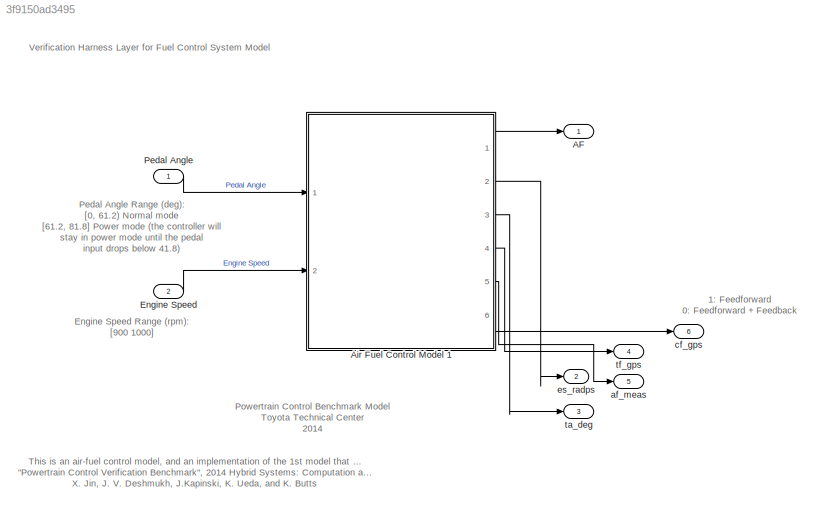
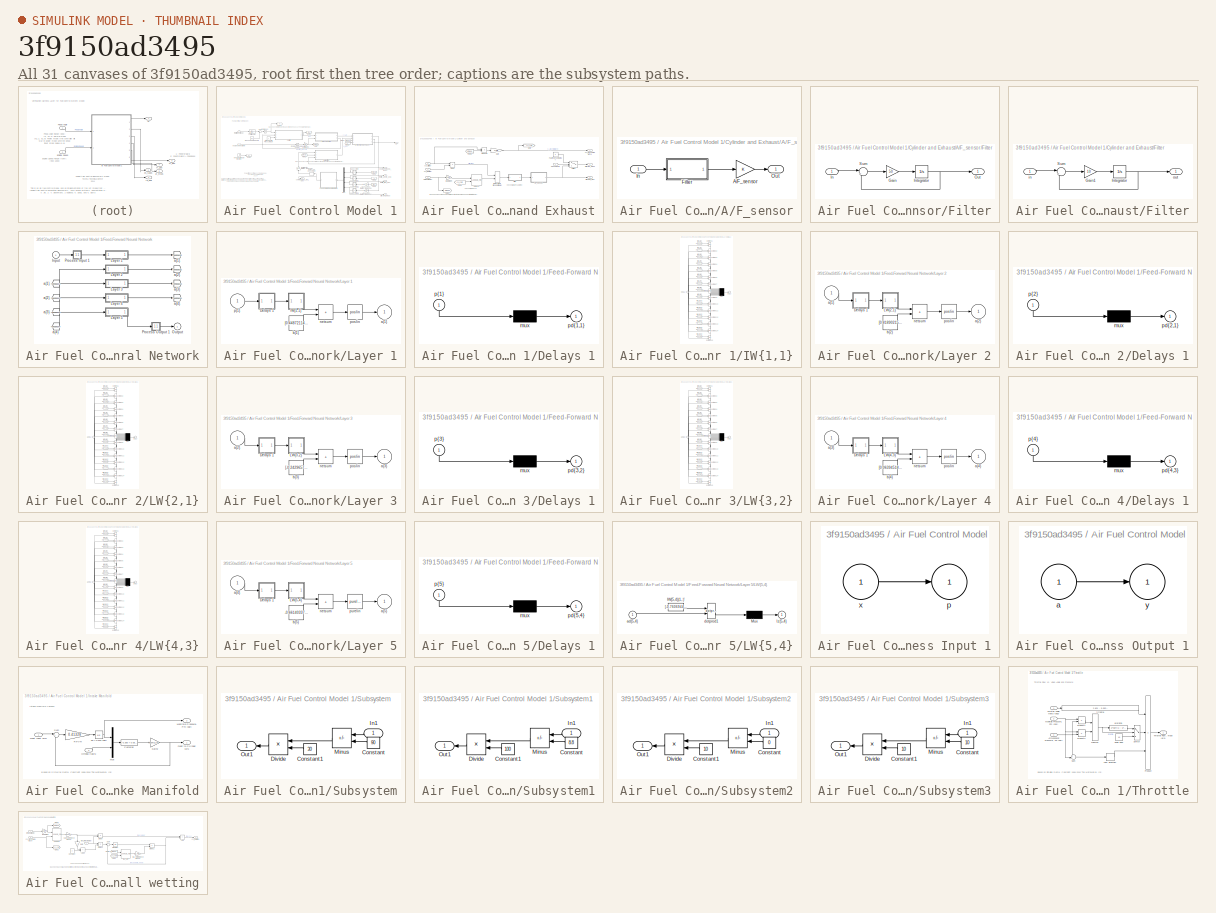
[diagram: thumbnail index - all 31 canvases of the model, root first then tree order]
MODEL slx_3f9150ad3495
KIND model
CONFIG AbsTol = auto
CONFIG EnableMultiTasking = off
CONFIG FixedStep = auto
CONFIG MaxStep = .01
CONFIG MinStep = auto
CONFIG RelTol = 1e-3
CONFIG SampleTimeConstraint = Unconstrained
CONFIG Solver = ode15s
CONFIG SolverMode = SingleTasking
CONFIG SolverName = ode15s
CONFIG StartTime = 0.0
CONFIG StopTime = T
BLOCK [Outport] AF
  VectorParamsAs1DForOutWhenUnconnected = off
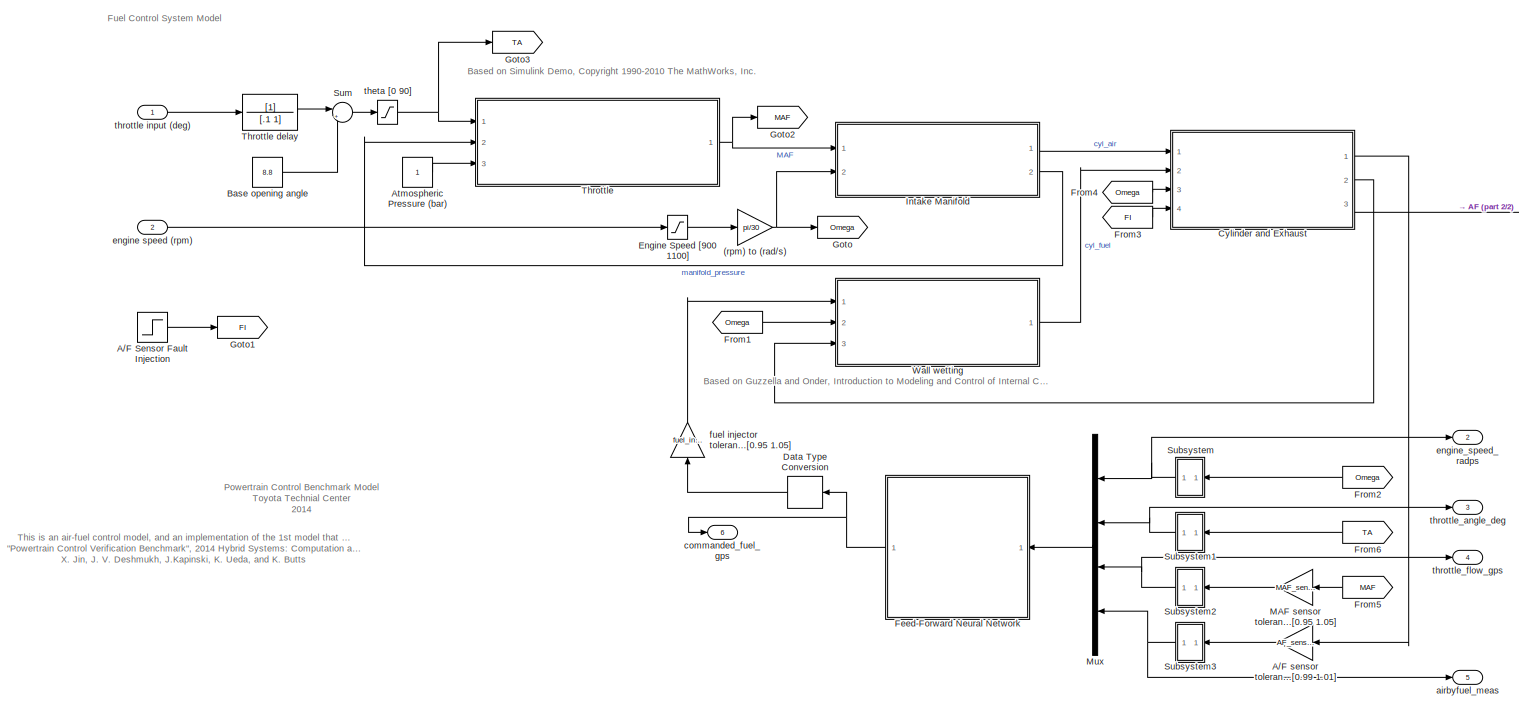
[diagram: Air Fuel Control Model 1 - part 1/2, most of the canvas]
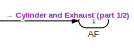
[diagram: Air Fuel Control Model 1 - part 2/2, top right region]
BLOCK [SubSystem] Air Fuel Control Model 1
  Ports = [2, 6]
  Priority = 1
  RequestExecContextInheritance = off
  TreatAsAtomicUnit = on
BLOCK [Gain] Air Fuel Control Model 1/(rpm) to (rad//s)
  Gain = pi/30
BLOCK [Step] Air Fuel Control Model 1/A//F Sensor Fault Injection
  AttributesFormatString = 1: Failure\n0: Normal
  SampleTime = 0
  Time = fault_time
BLOCK [Gain] Air Fuel Control Model 1/A//F sensor tolerance [0.99 1.01]
  Gain = AF_sensor_tol
BLOCK [Outport] Air Fuel Control Model 1/AF
  VectorParamsAs1DForOutWhenUnconnected = off
BLOCK [Constant] Air Fuel Control Model 1/Atmospheric Pressure (bar)
BLOCK [Constant] Air Fuel Control Model 1/Base opening angle
  Value = 8.8
BLOCK [SubSystem] Air Fuel Control Model 1/Cylinder and Exhaust
  Ports = [4, 3]
  RequestExecContextInheritance = off
BLOCK [SubSystem] Air Fuel Control Model 1/Cylinder and Exhaust/A//F_sensor
  Ports = [1, 1]
  RequestExecContextInheritance = off
BLOCK [Gain] Air Fuel Control Model 1/Cylinder and Exhaust/A//F_sensor/A//F_sensor
  OutDataTypeStr = double
BLOCK [SubSystem] Air Fuel Control Model 1/Cylinder and Exhaust/A//F_sensor/Filter
  Ports = [1, 1]
  RequestExecContextInheritance = off
BLOCK [Gain] Air Fuel Control Model 1/Cylinder and Exhaust/A//F_sensor/Filter/Gain
  Gain = 50
BLOCK [Inport] Air Fuel Control Model 1/Cylinder and Exhaust/A//F_sensor/Filter/In
BLOCK [Integrator] Air Fuel Control Model 1/Cylinder and Exhaust/A//F_sensor/Filter/Integrator
  InitialCondition = 14.7
  Ports = [1, 1]
BLOCK [Outport] Air Fuel Control Model 1/Cylinder and Exhaust/A//F_sensor/Filter/Out
  VectorParamsAs1DForOutWhenUnconnected = off
BLOCK [Sum] Air Fuel Control Model 1/Cylinder and Exhaust/A//F_sensor/Filter/Sum
  Inputs = |+-
  Ports = [2, 1]
BLOCK [Inport] Air Fuel Control Model 1/Cylinder and Exhaust/A//F_sensor/In
BLOCK [Outport] Air Fuel Control Model 1/Cylinder and Exhaust/A//F_sensor/Out
  VectorParamsAs1DForOutWhenUnconnected = off
BLOCK [Product] Air Fuel Control Model 1/Cylinder and Exhaust/Divide
  Inputs = */
  Ports = [2, 1]
BLOCK [Constant] Air Fuel Control Model 1/Cylinder and Exhaust/FaultySensorOutput
  Value = -1
BLOCK [SubSystem] Air Fuel Control Model 1/Cylinder and Exhaust/Filter
  Ports = [1, 1]
  RequestExecContextInheritance = off
BLOCK [Gain] Air Fuel Control Model 1/Cylinder and Exhaust/Filter/Gain1
  Gain = 10
BLOCK [Integrator] Air Fuel Control Model 1/Cylinder and Exhaust/Filter/Integrator
  InitialCondition = 14.7
  Ports = [1, 1]
BLOCK [Sum] Air Fuel Control Model 1/Cylinder and Exhaust/Filter/Sum
  Inputs = |+-
  Ports = [2, 1]
BLOCK [Inport] Air Fuel Control Model 1/Cylinder and Exhaust/Filter/in
BLOCK [Outport] Air Fuel Control Model 1/Cylinder and Exhaust/Filter/out
  VectorParamsAs1DForOutWhenUnconnected = off
BLOCK [From] Air Fuel Control Model 1/Cylinder and Exhaust/From1
  GotoTag = Omega
BLOCK [From] Air Fuel Control Model 1/Cylinder and Exhaust/From3
  GotoTag = cyl_chrg
BLOCK [Gain] Air Fuel Control Model 1/Cylinder and Exhaust/Gain
  Gain = 4*pi/4
BLOCK [Goto] Air Fuel Control Model 1/Cylinder and Exhaust/Goto
  GotoTag = cyl_chrg
BLOCK [Goto] Air Fuel Control Model 1/Cylinder and Exhaust/Goto1
  GotoTag = Omega
BLOCK [Inport] Air Fuel Control Model 1/Cylinder and Exhaust/Omega (rad//s)
  Port = 3
BLOCK [Product] Air Fuel Control Model 1/Cylinder and Exhaust/Product1
  Inputs = */
  Ports = [2, 1]
  RndMeth = Zero
BLOCK [Inport] Air Fuel Control Model 1/Cylinder and Exhaust/SensorFault
  Port = 4
BLOCK [Switch] Air Fuel Control Model 1/Cylinder and Exhaust/Switch
  InputSameDT = off
  SaturateOnIntegerOverflow = off
  Threshold = 0.5
BLOCK [Outport] Air Fuel Control Model 1/Cylinder and Exhaust/airbyfue_meas
  VectorParamsAs1DForOutWhenUnconnected = off
BLOCK [Outport] Air Fuel Control Model 1/Cylinder and Exhaust/airbyfuel_mon 
  Port = 3
  VectorParamsAs1DForOutWhenUnconnected = off
BLOCK [Inport] Air Fuel Control Model 1/Cylinder and Exhaust/cyl_air (g//s)
BLOCK [Outport] Air Fuel Control Model 1/Cylinder and Exhaust/cyl_air_charge (g//cyl)
  Port = 2
  VectorParamsAs1DForOutWhenUnconnected = off
BLOCK [Inport] Air Fuel Control Model 1/Cylinder and Exhaust/cyl_fuel (g//s)
  Port = 2
BLOCK [Lookup_n-D] Air Fuel Control Model 1/Cylinder and Exhaust/delay (s)
  BreakpointsForDimension1 = [800,1000,1500,2000,3000]
  BreakpointsForDimension2 = [0.05,0.15,0.2,0.25]
  InputPortMap = u0,u1
  Ports = [2, 1]
  RndMeth = Simplest
  Table = reshape([0.8,0.6,0.4,0.3,0.2,0.4,0.3,0.2,0.2,0.2,0.3,0.25,0.2,0.2,0.2,0.25,0.2,0.2,0.2,0.2],5,4)
  UseLastTableValue = on
BLOCK [VariableTransportDelay] Air Fuel Control Model 1/Cylinder and Exhaust/fuel system transport delay
  InitialOutput = 14.7
  MaximumDelay = 10
  MaximumPoints = 20480
  Ports = [2, 1]
  VariableDelayType = Variable transport delay
BLOCK [Gain] Air Fuel Control Model 1/Cylinder and Exhaust/rad//s to rpm
  Gain = 60/(2*pi)
BLOCK [DataTypeConversion] Air Fuel Control Model 1/Data Type Conversion
  OutDataTypeStr = double
  RndMeth = Floor
  SaturateOnIntegerOverflow = off
BLOCK [Saturate] Air Fuel Control Model 1/Engine Speed [900 1100]
  LowerLimit = 900
  NameLocation = top
  UpperLimit = 1100
BLOCK [SubSystem] Air Fuel Control Model 1/Feed-Forward Neural Network
  Ports = [1, 1]
  RequestExecContextInheritance = off
BLOCK [From] Air Fuel Control Model 1/Feed-Forward Neural Network/ a{1} 
  GotoTag = feedback1
BLOCK [From] Air Fuel Control Model 1/Feed-Forward Neural Network/ a{2} 
  GotoTag = feedback2
BLOCK [From] Air Fuel Control Model 1/Feed-Forward Neural Network/ a{3} 
  GotoTag = feedback3
BLOCK [From] Air Fuel Control Model 1/Feed-Forward Neural Network/ a{4} 
  GotoTag = feedback4
BLOCK [Inport] Air Fuel Control Model 1/Feed-Forward Neural Network/Input
  PortDimensions = 4
BLOCK [SubSystem] Air Fuel Control Model 1/Feed-Forward Neural Network/Layer 1
  Ports = [1, 1]
  RequestExecContextInheritance = off
BLOCK [SubSystem] Air Fuel Control Model 1/Feed-Forward Neural Network/Layer 1/Delays 1
  Ports = [1, 1]
  RequestExecContextInheritance = off
BLOCK [Mux] Air Fuel Control Model 1/Feed-Forward Neural Network/Layer 1/Delays 1/mux
  Inputs = 1
  Ports = [1, 1]
BLOCK [Outport] Air Fuel Control Model 1/Feed-Forward Neural Network/Layer 1/Delays 1/pd{1,1}
BLOCK [Inport] Air Fuel Control Model 1/Feed-Forward Neural Network/Layer 1/Delays 1/p{1}
  NameLocation = left
  PortDimensions = 4
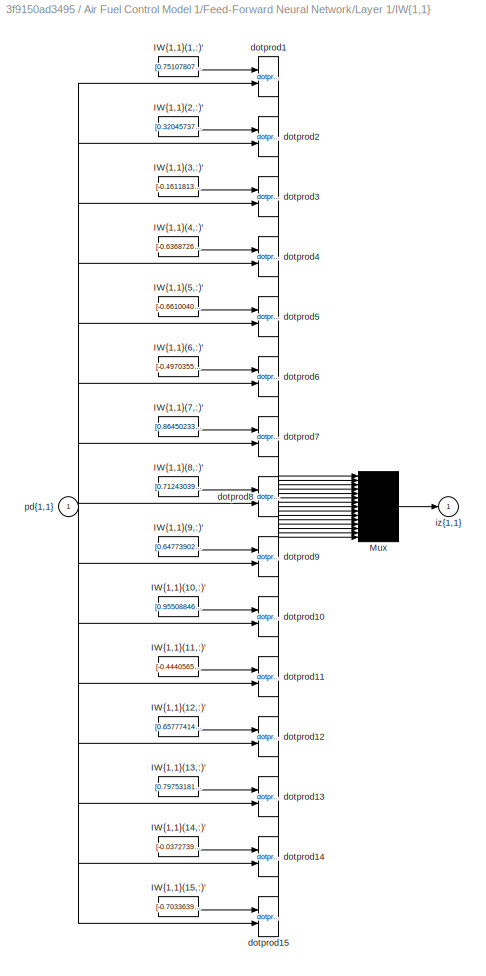
BLOCK [SubSystem] Air Fuel Control Model 1/Feed-Forward Neural Network/Layer 1/IW{1,1}
  Ports = [1, 1]
  RequestExecContextInheritance = off
BLOCK [Constant] Air Fuel Control Model 1/Feed-Forward Neural Network/Layer 1/IW{1,1}/IW{1,1}(1,:)'
  Value = [0.7510780750369565605950583631056360900402069091796875;0.369898134114826415697052652831189334392547607421875;0.416028857377880256773750033971737138926982879638671875;0.5211117066034265388196899948525242507457733154296875]
BLOCK [Constant] Air Fuel Control Model 1/Feed-Forward Neural Network/Layer 1/IW{1,1}/IW{1,1}(10,:)'
  Value = [0.955088464344620025059384715859778225421905517578125;-0.282748598621306468370306674842140637338161468505859375;0.64674947270095339835194181432598270475864410400390625;-0.298674928358695968011460308844107203185558319091796875]
BLOCK [Constant] Air Fuel Control Model 1/Feed-Forward Neural Network/Layer 1/IW{1,1}/IW{1,1}(11,:)'
  Value = [-0.44405650061037527098761756860767491161823272705078125;-0.84149434792941946170685696415603160858154296875;0.9545569697502205297467980926739983260631561279296875;-0.71510542337087679154450370333506725728511810302734375]
BLOCK [Constant] Air Fuel Control Model 1/Feed-Forward Neural Network/Layer 1/IW{1,1}/IW{1,1}(12,:)'
  Value = [0.65777414690987801026977876972523517906665802001953125;-0.1330506581175446567666398323126486502587795257568359375;0.0187714870082134784035066132901192759163677692413330078125;0.1823314131134064208783485128151369281113147735595703125]
BLOCK [Constant] Air Fuel Control Model 1/Feed-Forward Neural Network/Layer 1/IW{1,1}/IW{1,1}(13,:)'
  Value = [0.79753181299547593052778893252252601087093353271484375;-0.42595117042808550156252067608875222504138946533203125;-0.4827015817135611452926013953401707112789154052734375;0.8492004368308645467777751036919653415679931640625]
BLOCK [Constant] Air Fuel Control Model 1/Feed-Forward Neural Network/Layer 1/IW{1,1}/IW{1,1}(14,:)'
  Value = [-0.0372739053321138325003403224400244653224945068359375;-0.9927795269413157708271455703652463853359222412109375;-0.7739083278270808552434800731134600937366485595703125;-0.87057314046315337208170603844337165355682373046875]
BLOCK [Constant] Air Fuel Control Model 1/Feed-Forward Neural Network/Layer 1/IW{1,1}/IW{1,1}(15,:)'
  Value = [-0.7033639572487493385466450490639545023441314697265625;0.0043794529784773050806734318030066788196563720703125;0.047716177562046713234167327755130827426910400390625;-0.8264903423052596398434843649738468229770660400390625]
BLOCK [Constant] Air Fuel Control Model 1/Feed-Forward Neural Network/Layer 1/IW{1,1}/IW{1,1}(2,:)'
  Value = [0.32045737395158047089438468901789747178554534912109375;0.2061579968280331798258231401632656343281269073486328125;-0.1913219514398062648385945294648990966379642486572265625;0.72688810176578522170842688865377567708492279052734375]
BLOCK [Constant] Air Fuel Control Model 1/Feed-Forward Neural Network/Layer 1/IW{1,1}/IW{1,1}(3,:)'
  Value = [-0.1611813235943995170629250424099154770374298095703125;0.268680493787444907294315044055110774934291839599609375;0.85963502194711860493470112487557344138622283935546875;0.200855912920710977243032857586513273417949676513671875]
BLOCK [Constant] Air Fuel Control Model 1/Feed-Forward Neural Network/Layer 1/IW{1,1}/IW{1,1}(4,:)'
  Value = [-0.63687268075502323494418988047982566058635711669921875;0.52385361944338215689498383653699420392513275146484375;0.8123257193082074056889041457907296717166900634765625;0.70642996282236703020629420279874466359615325927734375]
BLOCK [Constant] Air Fuel Control Model 1/Feed-Forward Neural Network/Layer 1/IW{1,1}/IW{1,1}(5,:)'
  Value = [-0.66100405728019062667755179063533432781696319580078125;-0.382666571771167862703322271045180968940258026123046875;0.113265118425188215933729907192173413932323455810546875;0.77365498506804752931742541477433405816555023193359375]
BLOCK [Constant] Air Fuel Control Model 1/Feed-Forward Neural Network/Layer 1/IW{1,1}/IW{1,1}(6,:)'
  Value = [-0.4970355231150047625732213418814353644847869873046875;-0.7119870474261784654146367756766267120838165283203125;-0.0132372852845479282990481806336902081966400146484375;-0.6625029938867117440537413131096400320529937744140625]
BLOCK [Constant] Air Fuel Control Model 1/Feed-Forward Neural Network/Layer 1/IW{1,1}/IW{1,1}(7,:)'
  Value = [0.86450233851394175932369989823200739920139312744140625;0.3858132525607942397982697002589702606201171875;-0.2299061338131995757549930203822441399097442626953125;0.09955711929429846007710835920079261995851993560791015625]
BLOCK [Constant] Air Fuel Control Model 1/Feed-Forward Neural Network/Layer 1/IW{1,1}/IW{1,1}(8,:)'
  Value = [0.7124303970011844899801189967547543346881866455078125;-0.3610266740103751370583040625206194818019866943359375;-0.632705840349320425275436718948185443878173828125;0.34579165587571747408901501330547034740447998046875]
BLOCK [Constant] Air Fuel Control Model 1/Feed-Forward Neural Network/Layer 1/IW{1,1}/IW{1,1}(9,:)'
  Value = [0.64773902999107801914391302489093504846096038818359375;0.62604669276867597194069503530045039951801300048828125;0.2401798721922374924009346841557999141514301300048828125;-0.2089483318656649435407501869121915660798549652099609375]
BLOCK [Mux] Air Fuel Control Model 1/Feed-Forward Neural Network/Layer 1/IW{1,1}/Mux
  Inputs = 15
  Ports = [15, 1]
BLOCK [Reference] Air Fuel Control Model 1/Feed-Forward Neural Network/Layer 1/IW{1,1}/dotprod1  REF=neural/Weight Functions/dotprod
  Ports = [2, 1]
  SourceBlock = neural/Weight Functions/dotprod
  SourceProductBaseCode = NN
  SourceType = DOTPROD
BLOCK [Reference] Air Fuel Control Model 1/Feed-Forward Neural Network/Layer 1/IW{1,1}/dotprod10  REF=neural/Weight Functions/dotprod
  Ports = [2, 1]
  SourceBlock = neural/Weight Functions/dotprod
  SourceProductBaseCode = NN
  SourceType = DOTPROD
BLOCK [Reference] Air Fuel Control Model 1/Feed-Forward Neural Network/Layer 1/IW{1,1}/dotprod11  REF=neural/Weight Functions/dotprod
  Ports = [2, 1]
  SourceBlock = neural/Weight Functions/dotprod
  SourceProductBaseCode = NN
  SourceType = DOTPROD
BLOCK [Reference] Air Fuel Control Model 1/Feed-Forward Neural Network/Layer 1/IW{1,1}/dotprod12  REF=neural/Weight Functions/dotprod
  Ports = [2, 1]
  SourceBlock = neural/Weight Functions/dotprod
  SourceProductBaseCode = NN
  SourceType = DOTPROD
BLOCK [Reference] Air Fuel Control Model 1/Feed-Forward Neural Network/Layer 1/IW{1,1}/dotprod13  REF=neural/Weight Functions/dotprod
  Ports = [2, 1]
  SourceBlock = neural/Weight Functions/dotprod
  SourceProductBaseCode = NN
  SourceType = DOTPROD
BLOCK [Reference] Air Fuel Control Model 1/Feed-Forward Neural Network/Layer 1/IW{1,1}/dotprod14  REF=neural/Weight Functions/dotprod
  Ports = [2, 1]
  SourceBlock = neural/Weight Functions/dotprod
  SourceProductBaseCode = NN
  SourceType = DOTPROD
BLOCK [Reference] Air Fuel Control Model 1/Feed-Forward Neural Network/Layer 1/IW{1,1}/dotprod15  REF=neural/Weight Functions/dotprod
  Ports = [2, 1]
  SourceBlock = neural/Weight Functions/dotprod
  SourceProductBaseCode = NN
  SourceType = DOTPROD
BLOCK [Reference] Air Fuel Control Model 1/Feed-Forward Neural Network/Layer 1/IW{1,1}/dotprod2  REF=neural/Weight Functions/dotprod
  Ports = [2, 1]
  SourceBlock = neural/Weight Functions/dotprod
  SourceProductBaseCode = NN
  SourceType = DOTPROD
BLOCK [Reference] Air Fuel Control Model 1/Feed-Forward Neural Network/Layer 1/IW{1,1}/dotprod3  REF=neural/Weight Functions/dotprod
  Ports = [2, 1]
  SourceBlock = neural/Weight Functions/dotprod
  SourceProductBaseCode = NN
  SourceType = DOTPROD
BLOCK [Reference] Air Fuel Control Model 1/Feed-Forward Neural Network/Layer 1/IW{1,1}/dotprod4  REF=neural/Weight Functions/dotprod
  Ports = [2, 1]
  SourceBlock = neural/Weight Functions/dotprod
  SourceProductBaseCode = NN
  SourceType = DOTPROD
BLOCK [Reference] Air Fuel Control Model 1/Feed-Forward Neural Network/Layer 1/IW{1,1}/dotprod5  REF=neural/Weight Functions/dotprod
  Ports = [2, 1]
  SourceBlock = neural/Weight Functions/dotprod
  SourceProductBaseCode = NN
  SourceType = DOTPROD
BLOCK [Reference] Air Fuel Control Model 1/Feed-Forward Neural Network/Layer 1/IW{1,1}/dotprod6  REF=neural/Weight Functions/dotprod
  Ports = [2, 1]
  SourceBlock = neural/Weight Functions/dotprod
  SourceProductBaseCode = NN
  SourceType = DOTPROD
BLOCK [Reference] Air Fuel Control Model 1/Feed-Forward Neural Network/Layer 1/IW{1,1}/dotprod7  REF=neural/Weight Functions/dotprod
  Ports = [2, 1]
  SourceBlock = neural/Weight Functions/dotprod
  SourceProductBaseCode = NN
  SourceType = DOTPROD
BLOCK [Reference] Air Fuel Control Model 1/Feed-Forward Neural Network/Layer 1/IW{1,1}/dotprod8  REF=neural/Weight Functions/dotprod
  Ports = [2, 1]
  SourceBlock = neural/Weight Functions/dotprod
  SourceProductBaseCode = NN
  SourceType = DOTPROD
BLOCK [Reference] Air Fuel Control Model 1/Feed-Forward Neural Network/Layer 1/IW{1,1}/dotprod9  REF=neural/Weight Functions/dotprod
  Ports = [2, 1]
  SourceBlock = neural/Weight Functions/dotprod
  SourceProductBaseCode = NN
  SourceType = DOTPROD
BLOCK [Outport] Air Fuel Control Model 1/Feed-Forward Neural Network/Layer 1/IW{1,1}/iz{1,1}
BLOCK [Inport] Air Fuel Control Model 1/Feed-Forward Neural Network/Layer 1/IW{1,1}/pd{1,1}
  PortDimensions = 4
BLOCK [Outport] Air Fuel Control Model 1/Feed-Forward Neural Network/Layer 1/a{1}
  InitialOutput = [0;0;0;0;0;0;0;0;0;0;0;0;0;0;0]
BLOCK [Constant] Air Fuel Control Model 1/Feed-Forward Neural Network/Layer 1/b{1}
  Value = [0.44872114279416397408795091905631124973297119140625;-0.396533172040180514894558427840820513665676116943359375;0.069425659245130499908071897152694873511791229248046875;-0.468798466026612403734219469697563908994197845458984375;-0.07640958630630874381939321438039769418537616729736328125;-0.2003629557348232115288055865676142275333404541015625;-0.8252918879210933145174067249172367155551910400390625;-...<+449ch>
BLOCK [Sum] Air Fuel Control Model 1/Feed-Forward Neural Network/Layer 1/netsum
  IconShape = rectangular
  InputSameDT = on
  Inputs = 2
  OutDataTypeStr = Inherit: Same as first input
  Ports = [2, 1]
  SaturateOnIntegerOverflow = on
BLOCK [Reference] Air Fuel Control Model 1/Feed-Forward Neural Network/Layer 1/poslin  REF=neural/Transfer Functions/poslin
  Ports = [1, 1]
  SourceBlock = neural/Transfer Functions/poslin
  SourceProductBaseCode = NN
  SourceType = POSLIN
BLOCK [Inport] Air Fuel Control Model 1/Feed-Forward Neural Network/Layer 1/p{1}
  PortDimensions = 4
BLOCK [SubSystem] Air Fuel Control Model 1/Feed-Forward Neural Network/Layer 2
  Ports = [1, 1]
  RequestExecContextInheritance = off
BLOCK [SubSystem] Air Fuel Control Model 1/Feed-Forward Neural Network/Layer 2/Delays 1
  Ports = [1, 1]
  RequestExecContextInheritance = off
BLOCK [Mux] Air Fuel Control Model 1/Feed-Forward Neural Network/Layer 2/Delays 1/mux
  Inputs = 1
  Ports = [1, 1]
BLOCK [Outport] Air Fuel Control Model 1/Feed-Forward Neural Network/Layer 2/Delays 1/pd{2,1}
BLOCK [Inport] Air Fuel Control Model 1/Feed-Forward Neural Network/Layer 2/Delays 1/p{2}
  NameLocation = left
  PortDimensions = 15
BLOCK [SubSystem] Air Fuel Control Model 1/Feed-Forward Neural Network/Layer 2/LW{2,1}
  Ports = [1, 1]
  RequestExecContextInheritance = off
BLOCK [Constant] Air Fuel Control Model 1/Feed-Forward Neural Network/Layer 2/LW{2,1}/IW{2,1}(1,:)'
  Value = [0.60828373729495710531267604892491362988948822021484375;0.1631652431061806074463760296566761098802089691162109375;-0.44374590709596450910368048425880260765552520751953125;0.345526680299295285703209401617641560733318328857421875;0.348097898689621876311406367676681838929653167724609375;0.8265636312091990678396768998936749994754791259765625;-0.01586618016159375976759093873624806292355060577392578125...<+451ch>
BLOCK [Constant] Air Fuel Control Model 1/Feed-Forward Neural Network/Layer 2/LW{2,1}/IW{2,1}(10,:)'
  Value = [0.1874981804874335244992522575557813979685306549072265625;-0.387364613522674650081256686462438665330410003662109375;0.78290743200496437648183700730442069470882415771484375;0.86317824192602399246965205747983418405055999755859375;-0.59813734503873805525842044517048634588718414306640625;0.3906864891603387679452907832455821335315704345703125;-0.8173791825222698204100879593170247972011566162109375;0.9...<+441ch>
BLOCK [Constant] Air Fuel Control Model 1/Feed-Forward Neural Network/Layer 2/LW{2,1}/IW{2,1}(11,:)'
  Value = [-0.87645264535886735490777255108696408569812774658203125;-0.354803487782416215878811271977610886096954345703125;0.89745590027941080091267167517798952758312225341796875;0.12153107756977178655066751389313139952719211578369140625;0.0263130815585567445769044070402742363512516021728515625;-0.809370187848432731669845452415756881237030029296875;-0.50487186526927352314686459067161194980144500732421875;0....<+452ch>
BLOCK [Constant] Air Fuel Control Model 1/Feed-Forward Neural Network/Layer 2/LW{2,1}/IW{2,1}(12,:)'
  Value = [0.298893920656925160539429953132639639079570770263671875;-0.943158196479241706100538067403249442577362060546875;-0.72901934273769131156228695544996298849582672119140625;-0.4420743609879778102111913540284149348735809326171875;0.162898079805751105908484532847069203853607177734375;-0.03893962992941624179366044700145721435546875;-0.0249149427296144754251372432918287813663482666015625;0.78486859100942...<+422ch>
BLOCK [Constant] Air Fuel Control Model 1/Feed-Forward Neural Network/Layer 2/LW{2,1}/IW{2,1}(13,:)'
  Value = [-0.301267538043442584250186655481229536235332489013671875;0.2137960673758446950021294696853146888315677642822265625;-0.6099118162917822605351148013141937553882598876953125;-0.804913922659836078565831485320813953876495361328125;-0.77569083568485186486185511967050842940807342529296875;-0.1203229492733475236576623501605354249477386474609375;-0.4309096198696529267380128658260218799114227294921875;0.4...<+438ch>
BLOCK [Constant] Air Fuel Control Model 1/Feed-Forward Neural Network/Layer 2/LW{2,1}/IW{2,1}(14,:)'
  Value = [-0.4882471110167276862057406106032431125640869140625;-0.153288731021647084418191298027522861957550048828125;0.42935429919651912911149338469840586185455322265625;-0.9702630312509814558552534435875713825225830078125;0.3583641699961483961800468023284338414669036865234375;-0.1353416572083896429745664136135019361972808837890625;0.4918952919432595383142370337736792862415313720703125;-0.5764023623402385...<+421ch>
BLOCK [Constant] Air Fuel Control Model 1/Feed-Forward Neural Network/Layer 2/LW{2,1}/IW{2,1}(15,:)'
  Value = [-0.630110985981365612218496607965789735317230224609375;0.8242276349657886580502008655457757413387298583984375;-0.400759189777235125262677684077061712741851806640625;0.3277466841598546398728331041638739407062530517578125;0.8915540017782561665882212764699943363666534423828125;0.83874918710984758263293770141899585723876953125;0.45485624724982631761349693988449871540069580078125;0.4460472529162602395...<+413ch>
BLOCK [Constant] Air Fuel Control Model 1/Feed-Forward Neural Network/Layer 2/LW{2,1}/IW{2,1}(2,:)'
  Value = [0.554562195967324811363141634501516819000244140625;0.1497692577584186779393604638244141824543476104736328125;0.56295505738794149319659254615544341504573822021484375;-0.79339302952488333087188721037819050252437591552734375;-0.5227228745047407532098304727696813642978668212890625;-0.3416227507267695084891556689399294555187225341796875;-0.077931032288060197998902367544360458850860595703125;0.79113252...<+440ch>
BLOCK [Constant] Air Fuel Control Model 1/Feed-Forward Neural Network/Layer 2/LW{2,1}/IW{2,1}(3,:)'
  Value = [-0.997535944186512590903248565155081450939178466796875;0.9844775557991563008641833221190609037876129150390625;0.13365057898997889651582227088510990142822265625;0.598462918022267142958980912226252257823944091796875;-0.6928984585121236161597835234715603291988372802734375;0.47725275298145408697791935992427170276641845703125;0.31490478145201183934887012583203613758087158203125;-0.59650772444073352218...<+405ch>
BLOCK [Constant] Air Fuel Control Model 1/Feed-Forward Neural Network/Layer 2/LW{2,1}/IW{2,1}(4,:)'
  Value = [-0.7773311705499761359305921359919011592864990234375;-0.1463969306597807662484456159290857613086700439453125;-0.52098250625950992542811945895664393901824951171875;0.1340370775561925409391506036627106368541717529296875;0.286894704491670982093864950002171099185943603515625;-0.2232587156037413311793216053047217428684234619140625;0.30007640022437698235080461017787456512451171875;-0.587710092220042223...<+418ch>
BLOCK [Constant] Air Fuel Control Model 1/Feed-Forward Neural Network/Layer 2/LW{2,1}/IW{2,1}(5,:)'
  Value = [0.8442140630590719840853353161946870386600494384765625;-0.338275289571432880020296352086006663739681243896484375;0.78093285572494230972750983710284344851970672607421875;0.5354024127678302935606780010857619345188140869140625;-0.08976512545403049492254154984038905240595340728759765625;0.0061947204318573145798154655494727194309234619140625;-0.66291433016892231666616908114519901573657989501953125;-0....<+444ch>
BLOCK [Constant] Air Fuel Control Model 1/Feed-Forward Neural Network/Layer 2/LW{2,1}/IW{2,1}(6,:)'
  Value = [-0.6273218362596340025305607923655770719051361083984375;0.656185430676088810031387765775434672832489013671875;0.811438500319960898110593916499055922031402587890625;0.6995755518931172645125116105191409587860107421875;-0.1562054093044125957501222501377924345433712005615234375;-0.0322626762571427416759206607821397483348846435546875;-0.01132390864387658978296169465238563134334981441497802734375;-0.40...<+442ch>
BLOCK [Constant] Air Fuel Control Model 1/Feed-Forward Neural Network/Layer 2/LW{2,1}/IW{2,1}(7,:)'
  Value = [-0.1827589160867006956578961762716062366962432861328125;0.264553209549575729653270173002965748310089111328125;-0.602076083278996865288945627980865538120269775390625;-0.8668388126716621844281007724930532276630401611328125;-0.631703471288605822309136783587746322154998779296875;0.738811602164048064622647871146909892559051513671875;-0.29851980211238693385666920221410691738128662109375;-0.906651447149...<+425ch>
BLOCK [Constant] Air Fuel Control Model 1/Feed-Forward Neural Network/Layer 2/LW{2,1}/IW{2,1}(8,:)'
  Value = [0.9157552001415154574459620562265627086162567138671875;0.1691210332467132648748275869365897960960865020751953125;-0.410972009283113226540962159560876898467540740966796875;-0.79231054870772366083286897264770232141017913818359375;-0.6664760715628090803619443249772302806377410888671875;0.4958051958545179882520415048929862678050994873046875;0.8372202716459440363649946448276750743389129638671875;-0.65...<+452ch>
BLOCK [Constant] Air Fuel Control Model 1/Feed-Forward Neural Network/Layer 2/LW{2,1}/IW{2,1}(9,:)'
  Value = [0.264242922159276749649592375135398469865322113037109375;0.0281964884631230143507973906480401637963950634002685546875;0.437970352052139799692298538502654992043972015380859375;0.85719086127498778093780629205866716802120208740234375;0.6149400332096350840771492585190571844577789306640625;-0.1298886743902054607957552434527315199375152587890625;-0.116547252626436392830555632826872169971466064453125;-0...<+440ch>
BLOCK [Mux] Air Fuel Control Model 1/Feed-Forward Neural Network/Layer 2/LW{2,1}/Mux
  Inputs = 15
  Ports = [15, 1]
BLOCK [Inport] Air Fuel Control Model 1/Feed-Forward Neural Network/Layer 2/LW{2,1}/ad{2,1}
  PortDimensions = 15
BLOCK [Reference] Air Fuel Control Model 1/Feed-Forward Neural Network/Layer 2/LW{2,1}/dotprod1  REF=neural/Weight Functions/dotprod
  Ports = [2, 1]
  SourceBlock = neural/Weight Functions/dotprod
  SourceProductBaseCode = NN
  SourceType = DOTPROD
BLOCK [Reference] Air Fuel Control Model 1/Feed-Forward Neural Network/Layer 2/LW{2,1}/dotprod10  REF=neural/Weight Functions/dotprod
  Ports = [2, 1]
  SourceBlock = neural/Weight Functions/dotprod
  SourceProductBaseCode = NN
  SourceType = DOTPROD
BLOCK [Reference] Air Fuel Control Model 1/Feed-Forward Neural Network/Layer 2/LW{2,1}/dotprod11  REF=neural/Weight Functions/dotprod
  Ports = [2, 1]
  SourceBlock = neural/Weight Functions/dotprod
  SourceProductBaseCode = NN
  SourceType = DOTPROD
BLOCK [Reference] Air Fuel Control Model 1/Feed-Forward Neural Network/Layer 2/LW{2,1}/dotprod12  REF=neural/Weight Functions/dotprod
  Ports = [2, 1]
  SourceBlock = neural/Weight Functions/dotprod
  SourceProductBaseCode = NN
  SourceType = DOTPROD
BLOCK [Reference] Air Fuel Control Model 1/Feed-Forward Neural Network/Layer 2/LW{2,1}/dotprod13  REF=neural/Weight Functions/dotprod
  Ports = [2, 1]
  SourceBlock = neural/Weight Functions/dotprod
  SourceProductBaseCode = NN
  SourceType = DOTPROD
BLOCK [Reference] Air Fuel Control Model 1/Feed-Forward Neural Network/Layer 2/LW{2,1}/dotprod14  REF=neural/Weight Functions/dotprod
  Ports = [2, 1]
  SourceBlock = neural/Weight Functions/dotprod
  SourceProductBaseCode = NN
  SourceType = DOTPROD
BLOCK [Reference] Air Fuel Control Model 1/Feed-Forward Neural Network/Layer 2/LW{2,1}/dotprod15  REF=neural/Weight Functions/dotprod
  Ports = [2, 1]
  SourceBlock = neural/Weight Functions/dotprod
  SourceProductBaseCode = NN
  SourceType = DOTPROD
BLOCK [Reference] Air Fuel Control Model 1/Feed-Forward Neural Network/Layer 2/LW{2,1}/dotprod2  REF=neural/Weight Functions/dotprod
  Ports = [2, 1]
  SourceBlock = neural/Weight Functions/dotprod
  SourceProductBaseCode = NN
  SourceType = DOTPROD
BLOCK [Reference] Air Fuel Control Model 1/Feed-Forward Neural Network/Layer 2/LW{2,1}/dotprod3  REF=neural/Weight Functions/dotprod
  Ports = [2, 1]
  SourceBlock = neural/Weight Functions/dotprod
  SourceProductBaseCode = NN
  SourceType = DOTPROD
BLOCK [Reference] Air Fuel Control Model 1/Feed-Forward Neural Network/Layer 2/LW{2,1}/dotprod4  REF=neural/Weight Functions/dotprod
  Ports = [2, 1]
  SourceBlock = neural/Weight Functions/dotprod
  SourceProductBaseCode = NN
  SourceType = DOTPROD
BLOCK [Reference] Air Fuel Control Model 1/Feed-Forward Neural Network/Layer 2/LW{2,1}/dotprod5  REF=neural/Weight Functions/dotprod
  Ports = [2, 1]
  SourceBlock = neural/Weight Functions/dotprod
  SourceProductBaseCode = NN
  SourceType = DOTPROD
BLOCK [Reference] Air Fuel Control Model 1/Feed-Forward Neural Network/Layer 2/LW{2,1}/dotprod6  REF=neural/Weight Functions/dotprod
  Ports = [2, 1]
  SourceBlock = neural/Weight Functions/dotprod
  SourceProductBaseCode = NN
  SourceType = DOTPROD
BLOCK [Reference] Air Fuel Control Model 1/Feed-Forward Neural Network/Layer 2/LW{2,1}/dotprod7  REF=neural/Weight Functions/dotprod
  Ports = [2, 1]
  SourceBlock = neural/Weight Functions/dotprod
  SourceProductBaseCode = NN
  SourceType = DOTPROD
BLOCK [Reference] Air Fuel Control Model 1/Feed-Forward Neural Network/Layer 2/LW{2,1}/dotprod8  REF=neural/Weight Functions/dotprod
  Ports = [2, 1]
  SourceBlock = neural/Weight Functions/dotprod
  SourceProductBaseCode = NN
  SourceType = DOTPROD
BLOCK [Reference] Air Fuel Control Model 1/Feed-Forward Neural Network/Layer 2/LW{2,1}/dotprod9  REF=neural/Weight Functions/dotprod
  Ports = [2, 1]
  SourceBlock = neural/Weight Functions/dotprod
  SourceProductBaseCode = NN
  SourceType = DOTPROD
BLOCK [Outport] Air Fuel Control Model 1/Feed-Forward Neural Network/Layer 2/LW{2,1}/lz{2,1}
BLOCK [Inport] Air Fuel Control Model 1/Feed-Forward Neural Network/Layer 2/a{1} 
  PortDimensions = 15
BLOCK [Outport] Air Fuel Control Model 1/Feed-Forward Neural Network/Layer 2/a{2}
  InitialOutput = [0;0;0;0;0;0;0;0;0;0;0;0;0;0;0]
BLOCK [Constant] Air Fuel Control Model 1/Feed-Forward Neural Network/Layer 2/b{2}
  Value = [0.81890215779345021385182690210058353841304779052734375;0.08542878566402191398143628475736477412283420562744140625;-0.3778043625604527999684023598092608153820037841796875;0.481148200624269772873731199069879949092864990234375;0.6674665554800072175822833742131479084491729736328125;-0.7474309882369194468765272176824510097503662109375;-0.6546657412248659824172136723063886165618896484375;0.57126122550...<+428ch>
BLOCK [Sum] Air Fuel Control Model 1/Feed-Forward Neural Network/Layer 2/netsum
  IconShape = rectangular
  InputSameDT = on
  Inputs = 2
  OutDataTypeStr = Inherit: Same as first input
  Ports = [2, 1]
  SaturateOnIntegerOverflow = on
BLOCK [Reference] Air Fuel Control Model 1/Feed-Forward Neural Network/Layer 2/poslin  REF=neural/Transfer Functions/poslin
  Ports = [1, 1]
  SourceBlock = neural/Transfer Functions/poslin
  SourceProductBaseCode = NN
  SourceType = POSLIN
BLOCK [SubSystem] Air Fuel Control Model 1/Feed-Forward Neural Network/Layer 3
  Ports = [1, 1]
  RequestExecContextInheritance = off
BLOCK [SubSystem] Air Fuel Control Model 1/Feed-Forward Neural Network/Layer 3/Delays 1
  Ports = [1, 1]
  RequestExecContextInheritance = off
BLOCK [Mux] Air Fuel Control Model 1/Feed-Forward Neural Network/Layer 3/Delays 1/mux
  Inputs = 1
  Ports = [1, 1]
BLOCK [Outport] Air Fuel Control Model 1/Feed-Forward Neural Network/Layer 3/Delays 1/pd{3,2}
BLOCK [Inport] Air Fuel Control Model 1/Feed-Forward Neural Network/Layer 3/Delays 1/p{3}
  NameLocation = left
  PortDimensions = 15
BLOCK [SubSystem] Air Fuel Control Model 1/Feed-Forward Neural Network/Layer 3/LW{3,2}
  Ports = [1, 1]
  RequestExecContextInheritance = off
BLOCK [Constant] Air Fuel Control Model 1/Feed-Forward Neural Network/Layer 3/LW{3,2}/IW{3,2}(1,:)'
  Value = [-0.86301129045804658712626178385107778012752532958984375;0.6118016357822815276534811346209608018398284912109375;-0.448770468717050174944915852393023669719696044921875;0.039417878855195542797673624590970575809478759765625;-0.272599409373730505734556572861038148403167724609375;-0.0132278525814354432077468715078794048167765140533447265625;0.27510893551842041659938331576995551586151123046875;-0.16256...<+437ch>
BLOCK [Constant] Air Fuel Control Model 1/Feed-Forward Neural Network/Layer 3/LW{3,2}/IW{3,2}(10,:)'
  Value = [-0.2784079531374601401694235391914844512939453125;0.608168294583068647085610791691578924655914306640625;0.4652128874334693353631564605166204273700714111328125;0.2117353163302924112798564237891696393489837646484375;-0.3877434427272914430062655810615979135036468505859375;0.2567645318176783320041067781858146190643310546875;-0.9876800453373617560970387785346247255802154541015625;0.5191759503268860154...<+419ch>
BLOCK [Constant] Air Fuel Control Model 1/Feed-Forward Neural Network/Layer 3/LW{3,2}/IW{3,2}(11,:)'
  Value = [0.273203774685698619340001869204570539295673370361328125;-0.7906595053305698339585205758339725434780120849609375;0.583849070000980407968427243758924305438995361328125;0.9383988246397245713836809954955242574214935302734375;-0.66072231702565542565963596643996424973011016845703125;-0.891472443481964749167900663451291620731353759765625;0.7874416108864068508665923218359239399433135986328125;0.59269679...<+435ch>
BLOCK [Constant] Air Fuel Control Model 1/Feed-Forward Neural Network/Layer 3/LW{3,2}/IW{3,2}(12,:)'
  Value = [-0.3830328002595309033750936578144319355487823486328125;0.5655287131020296786942935796105302870273590087890625;-0.56563755415870264897648667101748287677764892578125;-0.753895819854298654405511115328408777713775634765625;0.107689861230984007534061674959957599639892578125;-0.8865608902806403346374963803100399672985076904296875;-0.5902057650183234471796822617761790752410888671875;-0.1535974223764247...<+422ch>
BLOCK [Constant] Air Fuel Control Model 1/Feed-Forward Neural Network/Layer 3/LW{3,2}/IW{3,2}(13,:)'
  Value = [-0.20063150427935616537666874137357808649539947509765625;-0.769446195419788647740233500371687114238739013671875;0.485845181970760986445156959234736859798431396484375;-0.084858866708749314256010620738379657268524169921875;0.61400264595550535506873757185530848801136016845703125;0.5329320363735552401607264982885681092739105224609375;0.8255560603635421212942446800298057496547698974609375;-0.746993156...<+429ch>
BLOCK [Constant] Air Fuel Control Model 1/Feed-Forward Neural Network/Layer 3/LW{3,2}/IW{3,2}(14,:)'
  Value = [-0.6071577082703163430466020145104266703128814697265625;-0.977261163813881950090944883413612842559814453125;0.26082563918290357918294830597005784511566162109375;-0.5621206550281094838084072762285359203815460205078125;0.781323428675917863728273005108349025249481201171875;-0.9882329094186397266952326390310190618038177490234375;0.334472346623993388448070618323981761932373046875;-0.464401218551299788...<+411ch>
BLOCK [Constant] Air Fuel Control Model 1/Feed-Forward Neural Network/Layer 3/LW{3,2}/IW{3,2}(15,:)'
  Value = [0.367087981192719237100163809373043477535247802734375;-0.8840783120306510145525180632830597460269927978515625;-0.0580263017873499098442380272899754345417022705078125;0.971391528445162411031787996762432157993316650390625;0.654235661651310973496720180264674127101898193359375;0.5037187028825067525161784942611120641231536865234375;0.381673791584718369307438479154370725154876708984375;-0.5276763535587...<+434ch>
BLOCK [Constant] Air Fuel Control Model 1/Feed-Forward Neural Network/Layer 3/LW{3,2}/IW{3,2}(2,:)'
  Value = [0.5737194951424340327861273181042633950710296630859375;-0.55584779618165924830464064143598079681396484375;-0.34954293145081738458657127921469509601593017578125;0.93717221057489208391189094982109963893890380859375;-0.94370267223165893444303264914196915924549102783203125;-0.535948676324559780681511256261728703975677490234375;-0.8093108252469212171575918546295724809169769287109375;0.8379983557573390...<+431ch>
BLOCK [Constant] Air Fuel Control Model 1/Feed-Forward Neural Network/Layer 3/LW{3,2}/IW{3,2}(3,:)'
  Value = [0.404470779466199470419951467192731797695159912109375;0.60621496767803717542477670576772652566432952880859375;-0.0643392890122302940625331757473759353160858154296875;-0.1058288585889186617094992470811121165752410888671875;-0.65251687480068454316750603538821451365947723388671875;0.353378008209826621754956477161613292992115020751953125;0.0907164068557657632396740154945291578769683837890625;0.763843...<+447ch>
BLOCK [Constant] Air Fuel Control Model 1/Feed-Forward Neural Network/Layer 3/LW{3,2}/IW{3,2}(4,:)'
  Value = [-0.05524789898072628158143260179713252000510692596435546875;-0.715980063590353932312382312375120818614959716796875;-0.24827863546763762059299551765434443950653076171875;-0.20919043727689601297470289864577353000640869140625;0.1430091727949580338030699522278155200183391571044921875;-0.60906711235546762139847487560473382472991943359375;-0.5117982914890959467157927065272815525531768798828125;0.751896...<+443ch>
BLOCK [Constant] Air Fuel Control Model 1/Feed-Forward Neural Network/Layer 3/LW{3,2}/IW{3,2}(5,:)'
  Value = [-0.69104029338774619617424832540564239025115966796875;0.0040236846517431867908953790902160108089447021484375;0.8558400671177601726213879373972304165363311767578125;-0.895017775624558087343984880135394632816314697265625;-0.185095085071437015500350753427483141422271728515625;-0.4552171665127373589854187230230309069156646728515625;0.8776929106441315742159758883644826710224151611328125;0.130149489879...<+424ch>
BLOCK [Constant] Air Fuel Control Model 1/Feed-Forward Neural Network/Layer 3/LW{3,2}/IW{3,2}(6,:)'
  Value = [-0.333140443941780828307486217454425059258937835693359375;-0.950103966495819296511626816936768591403961181640625;0.0581858891863988869630475164740346372127532958984375;-0.0021199494007231312053818328422494232654571533203125;0.425920052962606876523210530649521388113498687744140625;0.75380614628520259401511793839745223522186279296875;0.7716234645293440497226811203290708363056182861328125;0.99171021...<+432ch>
BLOCK [Constant] Air Fuel Control Model 1/Feed-Forward Neural Network/Layer 3/LW{3,2}/IW{3,2}(7,:)'
  Value = [0.110026992289163738636403877535485662519931793212890625;0.67373417683566449998266989496187306940555572509765625;-0.301845231266341773590511365910060703754425048828125;0.8019764531883470937145830248482525348663330078125;-0.11190227854424390774301656392708537168800830841064453125;0.67494032645118873237066736692213453352451324462890625;-0.5099673615384270330963545347913168370723724365234375;0.31292...<+439ch>
BLOCK [Constant] Air Fuel Control Model 1/Feed-Forward Neural Network/Layer 3/LW{3,2}/IW{3,2}(8,:)'
  Value = [0.461689260835830783680222566545126028358936309814453125;-0.332442455427390537447962515216204337775707244873046875;0.45646483804751625257267733104526996612548828125;-0.2215993190882838970168222658685408532619476318359375;0.6560662726001549316379168885760009288787841796875;-0.92587183455379484797731493017636239528656005859375;-0.4386334251282750784639574703760445117950439453125;0.47009152133705589...<+432ch>
BLOCK [Constant] Air Fuel Control Model 1/Feed-Forward Neural Network/Layer 3/LW{3,2}/IW{3,2}(9,:)'
  Value = [0.144174831017278293199268546231905929744243621826171875;-0.07368648711068793988321345977965393103659152984619140625;0.5309182993399785832622228554100729525089263916015625;0.5905316342593065481736402944079600274562835693359375;-0.68450170306392810193329978574183769524097442626953125;0.62331332002594308505649678409099578857421875;0.9246864819524898138070057029835879802703857421875;0.33003678949862...<+441ch>
BLOCK [Mux] Air Fuel Control Model 1/Feed-Forward Neural Network/Layer 3/LW{3,2}/Mux
  Inputs = 15
  Ports = [15, 1]
BLOCK [Inport] Air Fuel Control Model 1/Feed-Forward Neural Network/Layer 3/LW{3,2}/ad{3,2}
  PortDimensions = 15
BLOCK [Reference] Air Fuel Control Model 1/Feed-Forward Neural Network/Layer 3/LW{3,2}/dotprod1  REF=neural/Weight Functions/dotprod
  Ports = [2, 1]
  SourceBlock = neural/Weight Functions/dotprod
  SourceProductBaseCode = NN
  SourceType = DOTPROD
BLOCK [Reference] Air Fuel Control Model 1/Feed-Forward Neural Network/Layer 3/LW{3,2}/dotprod10  REF=neural/Weight Functions/dotprod
  Ports = [2, 1]
  SourceBlock = neural/Weight Functions/dotprod
  SourceProductBaseCode = NN
  SourceType = DOTPROD
BLOCK [Reference] Air Fuel Control Model 1/Feed-Forward Neural Network/Layer 3/LW{3,2}/dotprod11  REF=neural/Weight Functions/dotprod
  Ports = [2, 1]
  SourceBlock = neural/Weight Functions/dotprod
  SourceProductBaseCode = NN
  SourceType = DOTPROD
BLOCK [Reference] Air Fuel Control Model 1/Feed-Forward Neural Network/Layer 3/LW{3,2}/dotprod12  REF=neural/Weight Functions/dotprod
  Ports = [2, 1]
  SourceBlock = neural/Weight Functions/dotprod
  SourceProductBaseCode = NN
  SourceType = DOTPROD
BLOCK [Reference] Air Fuel Control Model 1/Feed-Forward Neural Network/Layer 3/LW{3,2}/dotprod13  REF=neural/Weight Functions/dotprod
  Ports = [2, 1]
  SourceBlock = neural/Weight Functions/dotprod
  SourceProductBaseCode = NN
  SourceType = DOTPROD
BLOCK [Reference] Air Fuel Control Model 1/Feed-Forward Neural Network/Layer 3/LW{3,2}/dotprod14  REF=neural/Weight Functions/dotprod
  Ports = [2, 1]
  SourceBlock = neural/Weight Functions/dotprod
  SourceProductBaseCode = NN
  SourceType = DOTPROD
BLOCK [Reference] Air Fuel Control Model 1/Feed-Forward Neural Network/Layer 3/LW{3,2}/dotprod15  REF=neural/Weight Functions/dotprod
  Ports = [2, 1]
  SourceBlock = neural/Weight Functions/dotprod
  SourceProductBaseCode = NN
  SourceType = DOTPROD
BLOCK [Reference] Air Fuel Control Model 1/Feed-Forward Neural Network/Layer 3/LW{3,2}/dotprod2  REF=neural/Weight Functions/dotprod
  Ports = [2, 1]
  SourceBlock = neural/Weight Functions/dotprod
  SourceProductBaseCode = NN
  SourceType = DOTPROD
BLOCK [Reference] Air Fuel Control Model 1/Feed-Forward Neural Network/Layer 3/LW{3,2}/dotprod3  REF=neural/Weight Functions/dotprod
  Ports = [2, 1]
  SourceBlock = neural/Weight Functions/dotprod
  SourceProductBaseCode = NN
  SourceType = DOTPROD
BLOCK [Reference] Air Fuel Control Model 1/Feed-Forward Neural Network/Layer 3/LW{3,2}/dotprod4  REF=neural/Weight Functions/dotprod
  Ports = [2, 1]
  SourceBlock = neural/Weight Functions/dotprod
  SourceProductBaseCode = NN
  SourceType = DOTPROD
BLOCK [Reference] Air Fuel Control Model 1/Feed-Forward Neural Network/Layer 3/LW{3,2}/dotprod5  REF=neural/Weight Functions/dotprod
  Ports = [2, 1]
  SourceBlock = neural/Weight Functions/dotprod
  SourceProductBaseCode = NN
  SourceType = DOTPROD
BLOCK [Reference] Air Fuel Control Model 1/Feed-Forward Neural Network/Layer 3/LW{3,2}/dotprod6  REF=neural/Weight Functions/dotprod
  Ports = [2, 1]
  SourceBlock = neural/Weight Functions/dotprod
  SourceProductBaseCode = NN
  SourceType = DOTPROD
BLOCK [Reference] Air Fuel Control Model 1/Feed-Forward Neural Network/Layer 3/LW{3,2}/dotprod7  REF=neural/Weight Functions/dotprod
  Ports = [2, 1]
  SourceBlock = neural/Weight Functions/dotprod
  SourceProductBaseCode = NN
  SourceType = DOTPROD
BLOCK [Reference] Air Fuel Control Model 1/Feed-Forward Neural Network/Layer 3/LW{3,2}/dotprod8  REF=neural/Weight Functions/dotprod
  Ports = [2, 1]
  SourceBlock = neural/Weight Functions/dotprod
  SourceProductBaseCode = NN
  SourceType = DOTPROD
BLOCK [Reference] Air Fuel Control Model 1/Feed-Forward Neural Network/Layer 3/LW{3,2}/dotprod9  REF=neural/Weight Functions/dotprod
  Ports = [2, 1]
  SourceBlock = neural/Weight Functions/dotprod
  SourceProductBaseCode = NN
  SourceType = DOTPROD
BLOCK [Outport] Air Fuel Control Model 1/Feed-Forward Neural Network/Layer 3/LW{3,2}/lz{3,2}
BLOCK [Inport] Air Fuel Control Model 1/Feed-Forward Neural Network/Layer 3/a{2} 
  PortDimensions = 15
BLOCK [Outport] Air Fuel Control Model 1/Feed-Forward Neural Network/Layer 3/a{3}
  InitialOutput = [0;0;0;0;0;0;0;0;0;0;0;0;0;0;0]
BLOCK [Constant] Air Fuel Control Model 1/Feed-Forward Neural Network/Layer 3/b{3}
  Value = [-0.2429657961099891405609696448664180934429168701171875;-0.9946858043155561990289470486459322273731231689453125;0.73133339501134830840101130888797342777252197265625;-0.58676493696557319168505273410119116306304931640625;-0.6798810561941348584724664760869927704334259033203125;-0.73849965270955575391553793451748788356781005859375;-0.57807417967642094058788870825082994997501373291015625;0.67635589783...<+432ch>
BLOCK [Sum] Air Fuel Control Model 1/Feed-Forward Neural Network/Layer 3/netsum
  IconShape = rectangular
  InputSameDT = on
  Inputs = 2
  OutDataTypeStr = Inherit: Same as first input
  Ports = [2, 1]
  SaturateOnIntegerOverflow = on
BLOCK [Reference] Air Fuel Control Model 1/Feed-Forward Neural Network/Layer 3/poslin  REF=neural/Transfer Functions/poslin
  Ports = [1, 1]
  SourceBlock = neural/Transfer Functions/poslin
  SourceProductBaseCode = NN
  SourceType = POSLIN
BLOCK [SubSystem] Air Fuel Control Model 1/Feed-Forward Neural Network/Layer 4
  Ports = [1, 1]
  RequestExecContextInheritance = off
BLOCK [SubSystem] Air Fuel Control Model 1/Feed-Forward Neural Network/Layer 4/Delays 1
  Ports = [1, 1]
  RequestExecContextInheritance = off
BLOCK [Mux] Air Fuel Control Model 1/Feed-Forward Neural Network/Layer 4/Delays 1/mux
  Inputs = 1
  Ports = [1, 1]
BLOCK [Outport] Air Fuel Control Model 1/Feed-Forward Neural Network/Layer 4/Delays 1/pd{4,3}
BLOCK [Inport] Air Fuel Control Model 1/Feed-Forward Neural Network/Layer 4/Delays 1/p{4}
  NameLocation = left
  PortDimensions = 15
BLOCK [SubSystem] Air Fuel Control Model 1/Feed-Forward Neural Network/Layer 4/LW{4,3}
  Ports = [1, 1]
  RequestExecContextInheritance = off
BLOCK [Constant] Air Fuel Control Model 1/Feed-Forward Neural Network/Layer 4/LW{4,3}/IW{4,3}(1,:)'
  Value = [0.409134208241364427660613500847830437123775482177734375;-0.018608604712277689030575089645935804583132266998291015625;-0.429419328749681750156952375618857331573963165283203125;0.0968634595111320939597732149195508100092411041259765625;0.161200991521329939359929994679987430572509765625;-0.008332083953835521528130669821621268056333065032958984375;0.200033178787946158694310838654928375035524368286132...<+460ch>
BLOCK [Constant] Air Fuel Control Model 1/Feed-Forward Neural Network/Layer 4/LW{4,3}/IW{4,3}(10,:)'
  Value = [-0.9681013194700429647099326757597737014293670654296875;0.308531151003858639114696416072547435760498046875;0.5238840389262133800940546279889531433582305908203125;-0.8084989587128526000725514677469618618488311767578125;-0.801873444424249459672182638314552605152130126953125;0.142650764746548308625762047086027450859546661376953125;-0.63857819911989810446328874604660086333751678466796875;-0.174290199...<+435ch>
BLOCK [Constant] Air Fuel Control Model 1/Feed-Forward Neural Network/Layer 4/LW{4,3}/IW{4,3}(11,:)'
  Value = [-0.22648953141163108426781036541797220706939697265625;-0.4126513309446071531283450894989073276519775390625;-0.919897514578432495824245052062906324863433837890625;-0.4049584327914892423194714865530841052532196044921875;-0.9260658560814845063902112087816931307315826416015625;0.247532816868120786324425353086553514003753662109375;-0.8130784976056506518915512060630135238170623779296875;-0.116149439050...<+427ch>
BLOCK [Constant] Air Fuel Control Model 1/Feed-Forward Neural Network/Layer 4/LW{4,3}/IW{4,3}(12,:)'
  Value = [-0.747377147172722633428065819316543638706207275390625;-0.89961393161859748435205119676538743078708648681640625;-0.037086697665867023043784200808659079484641551971435546875;-0.5886496554696816208007703608018346130847930908203125;0.840702237392853657382829624111764132976531982421875;0.68778578029264991755553637631237506866455078125;-0.09030666083632643559298003310686908662319183349609375;0.5165108...<+430ch>
BLOCK [Constant] Air Fuel Control Model 1/Feed-Forward Neural Network/Layer 4/LW{4,3}/IW{4,3}(13,:)'
  Value = [0.27292353101536026560580694422242231667041778564453125;0.291784885724885867386291238290141336619853973388671875;0.8796340464296978911562518987921066582202911376953125;0.307061729491277357606549003321561031043529510498046875;-0.3222728751950858505637143025523982942104339599609375;0.0304681963646269045320469359694470767863094806671142578125;-0.245654342263572550431049990038445685058832168579101562...<+445ch>
BLOCK [Constant] Air Fuel Control Model 1/Feed-Forward Neural Network/Layer 4/LW{4,3}/IW{4,3}(14,:)'
  Value = [0.1379230550644596764442439962294884026050567626953125;0.4775263823187978484696714076562784612178802490234375;-0.006364787120916037821416466613300144672393798828125;0.43980447972305025672312694950960576534271240234375;-0.6384608804287079664163684356026351451873779296875;-0.03130848387336104821088156313635408878326416015625;0.9574895373112684016092543970444239675998687744140625;-0.0896234843262868...<+417ch>
BLOCK [Constant] Air Fuel Control Model 1/Feed-Forward Neural Network/Layer 4/LW{4,3}/IW{4,3}(15,:)'
  Value = [0.08302032354421218229845180758275091648101806640625;0.249954151496840193402704244363121688365936279296875;0.5479301525869659794665267327218316495418548583984375;0.1693125052219013326748608960770070552825927734375;0.7569645787080911958355500246398150920867919921875;-0.8852503867351309008171256209607236087322235107421875;-0.6961185761680448447208391371532343327999114990234375;-0.560075738961179681...<+410ch>
BLOCK [Constant] Air Fuel Control Model 1/Feed-Forward Neural Network/Layer 4/LW{4,3}/IW{4,3}(2,:)'
  Value = [0.2079932863873300286083889432120486162602901458740234375;0.0198375850467484675376805824953407864086329936981201171875;-0.0170538332699734680730774272205962915904819965362548828125;-0.78563968744001211330640899177524261176586151123046875;-0.2368930020652066925634926519705913960933685302734375;0.9350198499073567592887457067263312637805938720703125;-0.12408787305239055154260086055728606879711151123...<+453ch>
BLOCK [Constant] Air Fuel Control Model 1/Feed-Forward Neural Network/Layer 4/LW{4,3}/IW{4,3}(3,:)'
  Value = [0.315872472556143424338159775288659147918224334716796875;0.1333374680748961316201217641719267703592777252197265625;-0.8918022391931847980828251820639707148075103759765625;0.7229899645184658663055188299040310084819793701171875;-0.2253949295409380937371679465286433696746826171875;0.43626032290268312863190658390522003173828125;-0.328908135182625349646201584619120694696903228759765625;-0.458606144094...<+428ch>
BLOCK [Constant] Air Fuel Control Model 1/Feed-Forward Neural Network/Layer 4/LW{4,3}/IW{4,3}(4,:)'
  Value = [-0.814037903285731001545855178846977651119232177734375;0.1890950378764437445067159160316805355250835418701171875;0.136401296266547567004323582295910455286502838134765625;0.360474784994809394067516450377297587692737579345703125;0.5630045830298939790736767463386058807373046875;0.29464287473444394915844668503268621861934661865234375;-0.166389331488835556793759451466030441224575042724609375;-0.529747...<+430ch>
BLOCK [Constant] Air Fuel Control Model 1/Feed-Forward Neural Network/Layer 4/LW{4,3}/IW{4,3}(5,:)'
  Value = [0.84176362305803476004939511767588555812835693359375;0.2477725819719711619626423271256498992443084716796875;0.5861173758530409116929149604402482509613037109375;-0.2752688473484992126572024062625132501125335693359375;0.51232493805437240297351308981887996196746826171875;-0.617883791172630925103703702916391193866729736328125;0.0601814606396653406505947714322246611118316650390625;-0.40735252602443994...<+418ch>
BLOCK [Constant] Air Fuel Control Model 1/Feed-Forward Neural Network/Layer 4/LW{4,3}/IW{4,3}(6,:)'
  Value = [-0.366067657130750567784360782752628438174724578857421875;-0.5885259561877165257470778669812716543674468994140625;-0.73842489905764419066969139748835004866123199462890625;0.714576283962894631685003332677297294139862060546875;-0.0609476018705905620009843914886005222797393798828125;0.73355928402501680007929962812340818345546722412109375;0.1474523444056059506834799321950413286685943603515625;-0.2160...<+432ch>
BLOCK [Constant] Air Fuel Control Model 1/Feed-Forward Neural Network/Layer 4/LW{4,3}/IW{4,3}(7,:)'
  Value = [-0.688943317105236818775892970734275877475738525390625;-0.5417308519282884038403835802455432713031768798828125;-0.2521322205228260227016789940535090863704681396484375;0.94374276814532809254387757391668856143951416015625;0.1889533323761056760048404612462036311626434326171875;-0.9318119687351316127177369708078913390636444091796875;0.4540745589147954230924142393632791936397552490234375;-0.5142256715...<+429ch>
BLOCK [Constant] Air Fuel Control Model 1/Feed-Forward Neural Network/Layer 4/LW{4,3}/IW{4,3}(8,:)'
  Value = [0.9247900306516465551709416104131378233432769775390625;-0.451872576203322662280470467521809041500091552734375;0.2144636938109696633336653803780791349709033966064453125;0.47393632788181161430429710890166461467742919921875;-0.5967841378403215824022254309966228902339935302734375;0.08921929855929823516280663397992611862719058990478515625;0.50281570056286717385063411711598746478557586669921875;-0.2361...<+440ch>
BLOCK [Constant] Air Fuel Control Model 1/Feed-Forward Neural Network/Layer 4/LW{4,3}/IW{4,3}(9,:)'
  Value = [-0.9777346721832860243495133545366115868091583251953125;0.3448850057379984068717249101609922945499420166015625;0.3117068047075581826987900058156810700893402099609375;-0.2800738720389521763109996754792518913745880126953125;0.1829551461951293145347108293208293616771697998046875;-0.036462488845966589678937452845275402069091796875;0.61637847324658689984744341927580535411834716796875;-0.97795607139009...<+420ch>
BLOCK [Mux] Air Fuel Control Model 1/Feed-Forward Neural Network/Layer 4/LW{4,3}/Mux
  Inputs = 15
  Ports = [15, 1]
BLOCK [Inport] Air Fuel Control Model 1/Feed-Forward Neural Network/Layer 4/LW{4,3}/ad{4,3}
  PortDimensions = 15
BLOCK [Reference] Air Fuel Control Model 1/Feed-Forward Neural Network/Layer 4/LW{4,3}/dotprod1  REF=neural/Weight Functions/dotprod
  Ports = [2, 1]
  SourceBlock = neural/Weight Functions/dotprod
  SourceProductBaseCode = NN
  SourceType = DOTPROD
BLOCK [Reference] Air Fuel Control Model 1/Feed-Forward Neural Network/Layer 4/LW{4,3}/dotprod10  REF=neural/Weight Functions/dotprod
  Ports = [2, 1]
  SourceBlock = neural/Weight Functions/dotprod
  SourceProductBaseCode = NN
  SourceType = DOTPROD
BLOCK [Reference] Air Fuel Control Model 1/Feed-Forward Neural Network/Layer 4/LW{4,3}/dotprod11  REF=neural/Weight Functions/dotprod
  Ports = [2, 1]
  SourceBlock = neural/Weight Functions/dotprod
  SourceProductBaseCode = NN
  SourceType = DOTPROD
BLOCK [Reference] Air Fuel Control Model 1/Feed-Forward Neural Network/Layer 4/LW{4,3}/dotprod12  REF=neural/Weight Functions/dotprod
  Ports = [2, 1]
  SourceBlock = neural/Weight Functions/dotprod
  SourceProductBaseCode = NN
  SourceType = DOTPROD
BLOCK [Reference] Air Fuel Control Model 1/Feed-Forward Neural Network/Layer 4/LW{4,3}/dotprod13  REF=neural/Weight Functions/dotprod
  Ports = [2, 1]
  SourceBlock = neural/Weight Functions/dotprod
  SourceProductBaseCode = NN
  SourceType = DOTPROD
BLOCK [Reference] Air Fuel Control Model 1/Feed-Forward Neural Network/Layer 4/LW{4,3}/dotprod14  REF=neural/Weight Functions/dotprod
  Ports = [2, 1]
  SourceBlock = neural/Weight Functions/dotprod
  SourceProductBaseCode = NN
  SourceType = DOTPROD
BLOCK [Reference] Air Fuel Control Model 1/Feed-Forward Neural Network/Layer 4/LW{4,3}/dotprod15  REF=neural/Weight Functions/dotprod
  Ports = [2, 1]
  SourceBlock = neural/Weight Functions/dotprod
  SourceProductBaseCode = NN
  SourceType = DOTPROD
BLOCK [Reference] Air Fuel Control Model 1/Feed-Forward Neural Network/Layer 4/LW{4,3}/dotprod2  REF=neural/Weight Functions/dotprod
  Ports = [2, 1]
  SourceBlock = neural/Weight Functions/dotprod
  SourceProductBaseCode = NN
  SourceType = DOTPROD
BLOCK [Reference] Air Fuel Control Model 1/Feed-Forward Neural Network/Layer 4/LW{4,3}/dotprod3  REF=neural/Weight Functions/dotprod
  Ports = [2, 1]
  SourceBlock = neural/Weight Functions/dotprod
  SourceProductBaseCode = NN
  SourceType = DOTPROD
BLOCK [Reference] Air Fuel Control Model 1/Feed-Forward Neural Network/Layer 4/LW{4,3}/dotprod4  REF=neural/Weight Functions/dotprod
  Ports = [2, 1]
  SourceBlock = neural/Weight Functions/dotprod
  SourceProductBaseCode = NN
  SourceType = DOTPROD
BLOCK [Reference] Air Fuel Control Model 1/Feed-Forward Neural Network/Layer 4/LW{4,3}/dotprod5  REF=neural/Weight Functions/dotprod
  Ports = [2, 1]
  SourceBlock = neural/Weight Functions/dotprod
  SourceProductBaseCode = NN
  SourceType = DOTPROD
BLOCK [Reference] Air Fuel Control Model 1/Feed-Forward Neural Network/Layer 4/LW{4,3}/dotprod6  REF=neural/Weight Functions/dotprod
  Ports = [2, 1]
  SourceBlock = neural/Weight Functions/dotprod
  SourceProductBaseCode = NN
  SourceType = DOTPROD
BLOCK [Reference] Air Fuel Control Model 1/Feed-Forward Neural Network/Layer 4/LW{4,3}/dotprod7  REF=neural/Weight Functions/dotprod
  Ports = [2, 1]
  SourceBlock = neural/Weight Functions/dotprod
  SourceProductBaseCode = NN
  SourceType = DOTPROD
BLOCK [Reference] Air Fuel Control Model 1/Feed-Forward Neural Network/Layer 4/LW{4,3}/dotprod8  REF=neural/Weight Functions/dotprod
  Ports = [2, 1]
  SourceBlock = neural/Weight Functions/dotprod
  SourceProductBaseCode = NN
  SourceType = DOTPROD
BLOCK [Reference] Air Fuel Control Model 1/Feed-Forward Neural Network/Layer 4/LW{4,3}/dotprod9  REF=neural/Weight Functions/dotprod
  Ports = [2, 1]
  SourceBlock = neural/Weight Functions/dotprod
  SourceProductBaseCode = NN
  SourceType = DOTPROD
BLOCK [Outport] Air Fuel Control Model 1/Feed-Forward Neural Network/Layer 4/LW{4,3}/lz{4,3}
BLOCK [Inport] Air Fuel Control Model 1/Feed-Forward Neural Network/Layer 4/a{3} 
  PortDimensions = 15
BLOCK [Outport] Air Fuel Control Model 1/Feed-Forward Neural Network/Layer 4/a{4}
  InitialOutput = [0;0;0;0;0;0;0;0;0;0;0;0;0;0;0]
BLOCK [Constant] Air Fuel Control Model 1/Feed-Forward Neural Network/Layer 4/b{4}
  Value = [0.06394518971482389402272161760265589691698551177978515625;-0.62324826034469571478524585472769103944301605224609375;0.56155322393732098884555625772918574512004852294921875;-0.400125437633733926912071865444886498153209686279296875;-0.608178716048091150270238358643837273120880126953125;-0.73545549584737146542323671383201144635677337646484375;0.2180370396120732134903619225951842963695526123046875;0....<+444ch>
BLOCK [Sum] Air Fuel Control Model 1/Feed-Forward Neural Network/Layer 4/netsum
  IconShape = rectangular
  InputSameDT = on
  Inputs = 2
  OutDataTypeStr = Inherit: Same as first input
  Ports = [2, 1]
  SaturateOnIntegerOverflow = on
BLOCK [Reference] Air Fuel Control Model 1/Feed-Forward Neural Network/Layer 4/poslin  REF=neural/Transfer Functions/poslin
  Ports = [1, 1]
  SourceBlock = neural/Transfer Functions/poslin
  SourceProductBaseCode = NN
  SourceType = POSLIN
BLOCK [SubSystem] Air Fuel Control Model 1/Feed-Forward Neural Network/Layer 5
  Ports = [1, 1]
  RequestExecContextInheritance = off
BLOCK [SubSystem] Air Fuel Control Model 1/Feed-Forward Neural Network/Layer 5/Delays 1
  Ports = [1, 1]
  RequestExecContextInheritance = off
BLOCK [Mux] Air Fuel Control Model 1/Feed-Forward Neural Network/Layer 5/Delays 1/mux
  Inputs = 1
  Ports = [1, 1]
BLOCK [Outport] Air Fuel Control Model 1/Feed-Forward Neural Network/Layer 5/Delays 1/pd{5,4}
BLOCK [Inport] Air Fuel Control Model 1/Feed-Forward Neural Network/Layer 5/Delays 1/p{5}
  NameLocation = left
  PortDimensions = 15
BLOCK [SubSystem] Air Fuel Control Model 1/Feed-Forward Neural Network/Layer 5/LW{5,4}
  Ports = [1, 1]
  RequestExecContextInheritance = off
BLOCK [Constant] Air Fuel Control Model 1/Feed-Forward Neural Network/Layer 5/LW{5,4}/IW{5,4}(1,:)'
  Value = [-0.76069441689470329581723717637942172586917877197265625;0.014695628439766288131362870217344607226550579071044921875;-0.5875265541395473523067494170391000807285308837890625;-0.8196023933676404027437456534244120121002197265625;0.9061263066130165189093759181560017168521881103515625;0.442303407245790036750321405634167604148387908935546875;-0.4886414939729564199666356216766871511936187744140625;-0.08...<+442ch>
BLOCK [Mux] Air Fuel Control Model 1/Feed-Forward Neural Network/Layer 5/LW{5,4}/Mux
  Inputs = 1
  Ports = [1, 1]
BLOCK [Inport] Air Fuel Control Model 1/Feed-Forward Neural Network/Layer 5/LW{5,4}/ad{5,4}
  PortDimensions = 15
BLOCK [Reference] Air Fuel Control Model 1/Feed-Forward Neural Network/Layer 5/LW{5,4}/dotprod1  REF=neural/Weight Functions/dotprod
  Ports = [2, 1]
  SourceBlock = neural/Weight Functions/dotprod
  SourceProductBaseCode = NN
  SourceType = DOTPROD
BLOCK [Outport] Air Fuel Control Model 1/Feed-Forward Neural Network/Layer 5/LW{5,4}/lz{5,4}
BLOCK [Inport] Air Fuel Control Model 1/Feed-Forward Neural Network/Layer 5/a{4} 
  PortDimensions = 15
BLOCK [Outport] Air Fuel Control Model 1/Feed-Forward Neural Network/Layer 5/a{5}
  InitialOutput = 0
BLOCK [Constant] Air Fuel Control Model 1/Feed-Forward Neural Network/Layer 5/b{5}
  Value = -0.66140337341239952007043712001177482306957244873046875
BLOCK [Sum] Air Fuel Control Model 1/Feed-Forward Neural Network/Layer 5/netsum
  IconShape = rectangular
  InputSameDT = on
  Inputs = 2
  OutDataTypeStr = Inherit: Same as first input
  Ports = [2, 1]
  SaturateOnIntegerOverflow = on
BLOCK [Reference] Air Fuel Control Model 1/Feed-Forward Neural Network/Layer 5/purelin  REF=neural/Transfer Functions/purelin
  Ports = [1, 1]
  SourceBlock = neural/Transfer Functions/purelin
  SourceProductBaseCode = NN
  SourceType = PURELIN
BLOCK [Outport] Air Fuel Control Model 1/Feed-Forward Neural Network/Output
  InitialOutput = 0
BLOCK [SubSystem] Air Fuel Control Model 1/Feed-Forward Neural Network/Process Input 1
  Ports = [1, 1]
  RequestExecContextInheritance = off
BLOCK [Outport] Air Fuel Control Model 1/Feed-Forward Neural Network/Process Input 1/p
  PortDimensions = 4
BLOCK [Inport] Air Fuel Control Model 1/Feed-Forward Neural Network/Process Input 1/x
  PortDimensions = 4
BLOCK [SubSystem] Air Fuel Control Model 1/Feed-Forward Neural Network/Process Output 1
  Ports = [1, 1]
  RequestExecContextInheritance = off
BLOCK [Inport] Air Fuel Control Model 1/Feed-Forward Neural Network/Process Output 1/a
  PortDimensions = 1
BLOCK [Outport] Air Fuel Control Model 1/Feed-Forward Neural Network/Process Output 1/y
  PortDimensions = 1
BLOCK [Goto] Air Fuel Control Model 1/Feed-Forward Neural Network/a{1}
  GotoTag = feedback1
BLOCK [Goto] Air Fuel Control Model 1/Feed-Forward Neural Network/a{2}
  GotoTag = feedback2
BLOCK [Goto] Air Fuel Control Model 1/Feed-Forward Neural Network/a{3}
  GotoTag = feedback3
BLOCK [Goto] Air Fuel Control Model 1/Feed-Forward Neural Network/a{4}
  GotoTag = feedback4
BLOCK [From] Air Fuel Control Model 1/From1
  GotoTag = Omega
BLOCK [From] Air Fuel Control Model 1/From2
  GotoTag = Omega
  NameLocation = top
BLOCK [From] Air Fuel Control Model 1/From3
  GotoTag = FI
BLOCK [From] Air Fuel Control Model 1/From4
  GotoTag = Omega
BLOCK [From] Air Fuel Control Model 1/From5
  GotoTag = MAF
  NameLocation = top
BLOCK [From] Air Fuel Control Model 1/From6
  GotoTag = TA
  NameLocation = top
BLOCK [Goto] Air Fuel Control Model 1/Goto
  GotoTag = Omega
BLOCK [Goto] Air Fuel Control Model 1/Goto1
  GotoTag = FI
BLOCK [Goto] Air Fuel Control Model 1/Goto2
  GotoTag = MAF
BLOCK [Goto] Air Fuel Control Model 1/Goto3
  GotoTag = TA
BLOCK [SubSystem] Air Fuel Control Model 1/Intake Manifold
  Ports = [2, 2]
  RequestExecContextInheritance = off
BLOCK [Gain] Air Fuel Control Model 1/Intake Manifold/Gain2
  AttributesFormatString = pumping tolerance [0.9 1.1]
  Gain = pump_tol
  OutDataTypeStr = Inherit: Inherit via back propagation
  ParamDataTypeStr = single
  RndMeth = Simplest
  SaturateOnIntegerOverflow = on
  UserDataPersistent = on
BLOCK [Outport] Air Fuel Control Model 1/Intake Manifold/Manifold Pressure, Pm (bar)
  InitialOutput = 0
  Port = 2
  VectorParamsAs1DForOutWhenUnconnected = off
BLOCK [Mux] Air Fuel Control Model 1/Intake Manifold/Mux
  DisplayOption = bar
  Inputs = 2
  Ports = [2, 1]
BLOCK [Inport] Air Fuel Control Model 1/Intake Manifold/Omega (rad//s)
  Port = 2
BLOCK [Fcn] Air Fuel Control Model 1/Intake Manifold/Pumping
  Expr = -0.366 + 0.08979*u[1]*u[2] - 0.0337*u[2]*u[1]*u[1] + 0.0001*u[1]*u[2]*u[2]
BLOCK [Gain] Air Fuel Control Model 1/Intake Manifold/RT//Vm
  Gain = 0.41328
  OutDataTypeStr = Inherit: Same as input
  ParamDataTypeStr = Inherit: Same as input
  SaturateOnIntegerOverflow = on
BLOCK [Sum] Air Fuel Control Model 1/Intake Manifold/Sum
  InputSameDT = on
  Inputs = |+-
  OutDataTypeStr = Inherit: Same as first input
  Ports = [2, 1]
  SaturateOnIntegerOverflow = on
BLOCK [Inport] Air Fuel Control Model 1/Intake Manifold/mdot Input (g//s)
BLOCK [Outport] Air Fuel Control Model 1/Intake Manifold/mdot to Cylinder (g//s)
  InitialOutput = 0
  VectorParamsAs1DForOutWhenUnconnected = off
BLOCK [Integrator] Air Fuel Control Model 1/Intake Manifold/p0 = 0.543 (bar)
  InitialCondition = 0.982
  Ports = [1, 1]
BLOCK [Gain] Air Fuel Control Model 1/MAF sensor tolerance [0.95 1.05]
  Gain = MAF_sensor_tol
BLOCK [Mux] Air Fuel Control Model 1/Mux
  DisplayOption = bar
  Ports = [4, 1]
BLOCK [SubSystem] Air Fuel Control Model 1/Subsystem
  Ports = [1, 1]
  RequestExecContextInheritance = off
BLOCK [Constant] Air Fuel Control Model 1/Subsystem/Constant
  Value = 90
BLOCK [Constant] Air Fuel Control Model 1/Subsystem/Constant1
  Value = 30
BLOCK [Product] Air Fuel Control Model 1/Subsystem/Divide
  Inputs = */
  Ports = [2, 1]
BLOCK [Inport] Air Fuel Control Model 1/Subsystem/In1
BLOCK [Sum] Air Fuel Control Model 1/Subsystem/Minus
  IconShape = rectangular
  Inputs = +-
  Ports = [2, 1]
BLOCK [Outport] Air Fuel Control Model 1/Subsystem/Out1
BLOCK [SubSystem] Air Fuel Control Model 1/Subsystem1
  Ports = [1, 1]
  RequestExecContextInheritance = off
BLOCK [Constant] Air Fuel Control Model 1/Subsystem1/Constant
  Value = 8.8
BLOCK [Constant] Air Fuel Control Model 1/Subsystem1/Constant1
  Value = 100
BLOCK [Product] Air Fuel Control Model 1/Subsystem1/Divide
  Inputs = */
  Ports = [2, 1]
BLOCK [Inport] Air Fuel Control Model 1/Subsystem1/In1
BLOCK [Sum] Air Fuel Control Model 1/Subsystem1/Minus
  IconShape = rectangular
  Inputs = +-
  Ports = [2, 1]
BLOCK [Outport] Air Fuel Control Model 1/Subsystem1/Out1
BLOCK [SubSystem] Air Fuel Control Model 1/Subsystem2
  Ports = [1, 1]
  RequestExecContextInheritance = off
BLOCK [Constant] Air Fuel Control Model 1/Subsystem2/Constant
  Value = 0
BLOCK [Constant] Air Fuel Control Model 1/Subsystem2/Constant1
  Value = 10
BLOCK [Product] Air Fuel Control Model 1/Subsystem2/Divide
  Inputs = */
  Ports = [2, 1]
BLOCK [Inport] Air Fuel Control Model 1/Subsystem2/In1
BLOCK [Sum] Air Fuel Control Model 1/Subsystem2/Minus
  IconShape = rectangular
  Inputs = +-
  Ports = [2, 1]
BLOCK [Outport] Air Fuel Control Model 1/Subsystem2/Out1
BLOCK [SubSystem] Air Fuel Control Model 1/Subsystem3
  Ports = [1, 1]
  RequestExecContextInheritance = off
BLOCK [Constant] Air Fuel Control Model 1/Subsystem3/Constant
  Value = 10
BLOCK [Constant] Air Fuel Control Model 1/Subsystem3/Constant1
  Value = 10
BLOCK [Product] Air Fuel Control Model 1/Subsystem3/Divide
  Inputs = */
  Ports = [2, 1]
BLOCK [Inport] Air Fuel Control Model 1/Subsystem3/In1
BLOCK [Sum] Air Fuel Control Model 1/Subsystem3/Minus
  IconShape = rectangular
  Inputs = +-
  Ports = [2, 1]
BLOCK [Outport] Air Fuel Control Model 1/Subsystem3/Out1
BLOCK [Sum] Air Fuel Control Model 1/Sum
  Inputs = |++
  Ports = [2, 1]
BLOCK [SubSystem] Air Fuel Control Model 1/Throttle
  Ports = [3, 1]
  RequestExecContextInheritance = off
BLOCK [TransferFcn] Air Fuel Control Model 1/Throttle delay
  Denominator = [.1 1]
BLOCK [Inport] Air Fuel Control Model 1/Throttle/Atmospheric Pressure, Pa (bar) 
  Port = 3
BLOCK [Inport] Air Fuel Control Model 1/Throttle/Manifold Pressure, Pm (bar)
  Port = 2
BLOCK [MinMax] Air Fuel Control Model 1/Throttle/MinMax
  InputSameDT = on
  Inputs = 2
  Ports = [2, 1]
  SaturateOnIntegerOverflow = on
BLOCK [Product] Air Fuel Control Model 1/Throttle/Product
  InputSameDT = on
  Inputs = 3
  OutDataTypeStr = Inherit: Same as first input
  Ports = [3, 1]
  RndMeth = Zero
  SaturateOnIntegerOverflow = on
BLOCK [Product] Air Fuel Control Model 1/Throttle/Product1
  InputSameDT = on
  Inputs = */
  OutDataTypeStr = Inherit: Same as first input
  Ports = [2, 1]
  RndMeth = Zero
  SaturateOnIntegerOverflow = on
BLOCK [Product] Air Fuel Control Model 1/Throttle/Product2
  InputSameDT = on
  Inputs = /*
  OutDataTypeStr = Inherit: Same as first input
  Ports = [2, 1]
  RndMeth = Zero
  SaturateOnIntegerOverflow = on
BLOCK [Constant] Air Fuel Control Model 1/Throttle/Sonic Flow 
  Value = 1.0
BLOCK [Sum] Air Fuel Control Model 1/Throttle/Sum
  InputSameDT = on
  Inputs = +-|
  OutDataTypeStr = Inherit: Same as first input
  Ports = [2, 1]
  SaturateOnIntegerOverflow = on
BLOCK [Switch] Air Fuel Control Model 1/Throttle/Switch
  Threshold = 0.5
BLOCK [Inport] Air Fuel Control Model 1/Throttle/Throttle Angle, theta (deg)
  NameLocation = top
BLOCK [Outport] Air Fuel Control Model 1/Throttle/Throttle Flow, mdot (g//s)
  InitialOutput = 0
  VectorParamsAs1DForOutWhenUnconnected = off
BLOCK [Fcn] Air Fuel Control Model 1/Throttle/f(theta)
  Expr = 2.821 - 0.05231*u + 0.10299*u*u - 0.00063*u*u*u
  NameLocation = top
BLOCK [Signum] Air Fuel Control Model 1/Throttle/flow direction
BLOCK [Fcn] Air Fuel Control Model 1/Throttle/g(pratio)
  Expr = 2*sqrt(u - u*u)
  NameLocation = top
BLOCK [SubSystem] Air Fuel Control Model 1/Wall wetting
  Ports = [3, 1]
  RequestExecContextInheritance = off
BLOCK [Lookup_n-D] Air Fuel Control Model 1/Wall wetting/1-Kappa
  BreakpointsForDimension1 = [1000,1500,2000,2500,3000]
  BreakpointsForDimension2 = [.1,.2,.3,.4]
  InputPortMap = u0,u1
  Ports = [2, 1]
  RndMeth = Simplest
  Table = reshape([0.8,.7,.7,.8,.9,.7,.66,.65,.73,.85,.66,.66,.63,.66,.8,.6,.6,.6,.6,.7],5,4)
  UseLastTableValue = on
BLOCK [Sum] Air Fuel Control Model 1/Wall wetting/Add
  IconShape = rectangular
  Ports = [2, 1]
BLOCK [Sum] Air Fuel Control Model 1/Wall wetting/Add2
  IconShape = rectangular
  Ports = [2, 1]
BLOCK [Constant] Air Fuel Control Model 1/Wall wetting/Constant
BLOCK [Product] Air Fuel Control Model 1/Wall wetting/Divide
  Inputs = **
  Ports = [2, 1]
BLOCK [Product] Air Fuel Control Model 1/Wall wetting/Divide1
  Inputs = **
  Ports = [2, 1]
BLOCK [Product] Air Fuel Control Model 1/Wall wetting/Divide2
  Inputs = */
  Ports = [2, 1]
BLOCK [From] Air Fuel Control Model 1/Wall wetting/From2
  GotoTag = cyl_chrg
BLOCK [From] Air Fuel Control Model 1/Wall wetting/From3
  GotoTag = Omega
BLOCK [Gain] Air Fuel Control Model 1/Wall wetting/Gain
  Gain = -1
  NameLocation = left
BLOCK [Goto] Air Fuel Control Model 1/Wall wetting/Goto1
  GotoTag = cyl_chrg
BLOCK [Goto] Air Fuel Control Model 1/Wall wetting/Goto2
  GotoTag = Omega
BLOCK [Integrator] Air Fuel Control Model 1/Wall wetting/Integrator
  InitialCondition = .0112
  Ports = [1, 1]
BLOCK [Gain] Air Fuel Control Model 1/Wall wetting/Kappa tolerance [0.9 1.1]
  Gain = kappa_tol
  NameLocation = top
BLOCK [Inport] Air Fuel Control Model 1/Wall wetting/Omega (rad//s)
  Port = 2
BLOCK [Sum] Air Fuel Control Model 1/Wall wetting/Sum
  Inputs = |+-
  Ports = [2, 1]
BLOCK [Inport] Air Fuel Control Model 1/Wall wetting/cyl_air_charge (g//cyl)
  Port = 3
BLOCK [Outport] Air Fuel Control Model 1/Wall wetting/cyl_fuel (g//s)
  VectorParamsAs1DForOutWhenUnconnected = off
BLOCK [Inport] Air Fuel Control Model 1/Wall wetting/fuel_injected (g//s)
BLOCK [Gain] Air Fuel Control Model 1/Wall wetting/rad//s to rpm
  Gain = 60/(2*pi)
BLOCK [Lookup_n-D] Air Fuel Control Model 1/Wall wetting/tau_ww
  BreakpointsForDimension1 = [1000,1500,2000,2500,3000]
  BreakpointsForDimension2 = [0.1,0.2,0.3,0.4]
  InputPortMap = u0,u1
  Ports = [2, 1]
  RndMeth = Simplest
  Table = reshape([.4,.3,.35,.3,.2,.22,.22,.4,.35,.5,.20,.22,.5,.4,.35,.35,.3,.45,.5,.4],5,4)
  UseLastTableValue = on
BLOCK [Gain] Air Fuel Control Model 1/Wall wetting/tau_ww tolerance [0.9 1.1]
  Gain = tau_ww_tol
  NameLocation = top
BLOCK [Outport] Air Fuel Control Model 1/airbyfuel_meas
  Port = 5
BLOCK [Outport] Air Fuel Control Model 1/commanded_fuel_gps
  Port = 6
BLOCK [Inport] Air Fuel Control Model 1/engine speed (rpm)
  AttributesFormatString = %<Description>
  Description = [900,1100]
  Port = 2
BLOCK [Outport] Air Fuel Control Model 1/engine_speed_radps
  Port = 2
BLOCK [Gain] Air Fuel Control Model 1/fuel injector tolerance [0.95 1.05]
  Gain = fuel_inj_tol
  NameLocation = right
BLOCK [Saturate] Air Fuel Control Model 1/theta [0 90]
  LowerLimit = 0
  NameLocation = top
  UpperLimit = 90
BLOCK [Inport] Air Fuel Control Model 1/throttle input (deg)
  AttributesFormatString = %<Description>
  Description = [0, 81.2]
BLOCK [Outport] Air Fuel Control Model 1/throttle_angle_deg
  Port = 3
BLOCK [Outport] Air Fuel Control Model 1/throttle_flow_gps
  Port = 4
BLOCK [Inport] Engine Speed
  Interpolate = off
  Port = 2
BLOCK [Inport] Pedal Angle
  Interpolate = off
BLOCK [Outport] af_meas
  Port = 5
BLOCK [Outport] cf_gps
  Port = 6
BLOCK [Outport] es_radps
  Port = 2
BLOCK [Outport] ta_deg
  Port = 3
BLOCK [Outport] tf_gps
  Port = 4
ANNOTATION (root): 1: Feedforward 0: Feedforward + Feedback
ANNOTATION (root): Engine Speed Range (rpm): [900 1000]
ANNOTATION (root): Pedal Angle Range (deg): [0, 61.2) Normal mode [61.2, 81.8] Power mode (the controller will stay in power mode until the pedal input drops below 41.8)
ANNOTATION (root): Powertrain Control Benchmark Model Toyota Technical Center 2014
ANNOTATION (root): This is an air-fuel control model, and an implementation of the 1st model that appears in "Powertrain Control Verification Benchmark", 2014 Hybrid Systems: Computation and Control, X. Jin, J. V. Deshmukh, J.Kapinski, K. Ueda, and K. Butts
ANNOTATION (root): Verification Harness Layer for Fuel Control System Model
ANNOTATION Air Fuel Control Model 1: Based on Guzzella and Onder, Introduction to Modeling and Control of Internal Combustion Engine Systems
ANNOTATION Air Fuel Control Model 1: Based on Simulink Demo, <copyright redacted>
ANNOTATION Air Fuel Control Model 1: Fuel Control System Model
ANNOTATION Air Fuel Control Model 1: Powertrain Control Benchmark Model Toyota Technial Center 2014
ANNOTATION Air Fuel Control Model 1: This is an air-fuel control model, and an implementation of the 1st model that appears in "Powertrain Control Verification Benchmark", 2014 Hybrid Systems: Computation and Control, X. Jin, J. V. Deshmukh, J.Kapinski, K. Ueda, and K. Butts
ANNOTATION Air Fuel Control Model 1/Cylinder and Exhaust: Based on Guzzella and Onder, Introduction to Modeling and Control of Internal Combustion Engine Systems
ANNOTATION Air Fuel Control Model 1/Cylinder and Exhaust: eqn 2.96, figure 4.16
ANNOTATION Air Fuel Control Model 1/Cylinder and Exhaust: eqn 2.96, figure 4.16 (simp)
ANNOTATION Air Fuel Control Model 1/Intake Manifold: Based on Simulink Demo, <copyright redacted>
ANNOTATION Air Fuel Control Model 1/Intake Manifold: Intake Manifold Vacuum
ANNOTATION Air Fuel Control Model 1/Throttle: Based on Simulink Demo, <copyright redacted>
ANNOTATION Air Fuel Control Model 1/Throttle: Throttle Flow vs. Valve Angle and Pressure
ANNOTATION Air Fuel Control Model 1/Wall wetting: Based on Guzzella and Onder, Introduction to Modeling and Control of Internal Combustion Engine Systems
ANNOTATION Air Fuel Control Model 1/Wall wetting: eqns 2.65 and 2.66, figure 2.21
NET Air Fuel Control Model 1/(rpm) to (rad//s):1 -> Air Fuel Control Model 1/Goto:1, Air Fuel Control Model 1/Intake Manifold:2
LINE Air Fuel Control Model 1/A//F Sensor Fault Injection:1 -> Air Fuel Control Model 1/Goto1:1
LINE Air Fuel Control Model 1/A//F sensor tolerance [0.99 1.01]:1 -> Air Fuel Control Model 1/Subsystem3:1
LINE Air Fuel Control Model 1/Atmospheric Pressure (bar):1 -> Air Fuel Control Model 1/Throttle:3
LINE Air Fuel Control Model 1/Base opening angle:1 -> Air Fuel Control Model 1/Sum:2
LINE Air Fuel Control Model 1/Cylinder and Exhaust/A//F_sensor/A//F_sensor:1 -> Air Fuel Control Model 1/Cylinder and Exhaust/A//F_sensor/Out:1
LINE Air Fuel Control Model 1/Cylinder and Exhaust/A//F_sensor/Filter/Gain:1 -> Air Fuel Control Model 1/Cylinder and Exhaust/A//F_sensor/Filter/Integrator:1
LINE Air Fuel Control Model 1/Cylinder and Exhaust/A//F_sensor/Filter/In:1 -> Air Fuel Control Model 1/Cylinder and Exhaust/A//F_sensor/Filter/Sum:1
NET Air Fuel Control Model 1/Cylinder and Exhaust/A//F_sensor/Filter/Integrator:1 -> Air Fuel Control Model 1/Cylinder and Exhaust/A//F_sensor/Filter/Out:1, Air Fuel Control Model 1/Cylinder and Exhaust/A//F_sensor/Filter/Sum:2
LINE Air Fuel Control Model 1/Cylinder and Exhaust/A//F_sensor/Filter/Sum:1 -> Air Fuel Control Model 1/Cylinder and Exhaust/A//F_sensor/Filter/Gain:1
LINE Air Fuel Control Model 1/Cylinder and Exhaust/A//F_sensor/Filter:1 -> Air Fuel Control Model 1/Cylinder and Exhaust/A//F_sensor/A//F_sensor:1
LINE Air Fuel Control Model 1/Cylinder and Exhaust/A//F_sensor/In:1 -> Air Fuel Control Model 1/Cylinder and Exhaust/A//F_sensor/Filter:1
NET Air Fuel Control Model 1/Cylinder and Exhaust/A//F_sensor:1 -> Air Fuel Control Model 1/Cylinder and Exhaust/Switch:3, Air Fuel Control Model 1/Cylinder and Exhaust/airbyfuel_mon :1
LINE Air Fuel Control Model 1/Cylinder and Exhaust/Divide:1 -> Air Fuel Control Model 1/Cylinder and Exhaust/fuel system transport delay:1
LINE Air Fuel Control Model 1/Cylinder and Exhaust/FaultySensorOutput:1 -> Air Fuel Control Model 1/Cylinder and Exhaust/Switch:1
LINE Air Fuel Control Model 1/Cylinder and Exhaust/Filter/Gain1:1 -> Air Fuel Control Model 1/Cylinder and Exhaust/Filter/Integrator:1
NET Air Fuel Control Model 1/Cylinder and Exhaust/Filter/Integrator:1 -> Air Fuel Control Model 1/Cylinder and Exhaust/Filter/Sum:2, Air Fuel Control Model 1/Cylinder and Exhaust/Filter/out:1
LINE Air Fuel Control Model 1/Cylinder and Exhaust/Filter/Sum:1 -> Air Fuel Control Model 1/Cylinder and Exhaust/Filter/Gain1:1
LINE Air Fuel Control Model 1/Cylinder and Exhaust/Filter/in:1 -> Air Fuel Control Model 1/Cylinder and Exhaust/Filter/Sum:1
LINE Air Fuel Control Model 1/Cylinder and Exhaust/Filter:1 -> Air Fuel Control Model 1/Cylinder and Exhaust/A//F_sensor:1
LINE Air Fuel Control Model 1/Cylinder and Exhaust/From1:1 -> Air Fuel Control Model 1/Cylinder and Exhaust/Product1:2
LINE Air Fuel Control Model 1/Cylinder and Exhaust/From3:1 -> Air Fuel Control Model 1/Cylinder and Exhaust/delay (s):2
NET Air Fuel Control Model 1/Cylinder and Exhaust/Gain:1 -> Air Fuel Control Model 1/Cylinder and Exhaust/Goto:1, Air Fuel Control Model 1/Cylinder and Exhaust/cyl_air_charge (g//cyl):1
NET Air Fuel Control Model 1/Cylinder and Exhaust/Omega (rad//s):1 -> Air Fuel Control Model 1/Cylinder and Exhaust/Goto1:1, Air Fuel Control Model 1/Cylinder and Exhaust/rad//s to rpm:1
LINE Air Fuel Control Model 1/Cylinder and Exhaust/Product1:1 -> Air Fuel Control Model 1/Cylinder and Exhaust/Gain:1
LINE Air Fuel Control Model 1/Cylinder and Exhaust/SensorFault:1 -> Air Fuel Control Model 1/Cylinder and Exhaust/Switch:2
LINE Air Fuel Control Model 1/Cylinder and Exhaust/Switch:1 -> Air Fuel Control Model 1/Cylinder and Exhaust/airbyfue_meas:1
NET Air Fuel Control Model 1/Cylinder and Exhaust/cyl_air (g//s):1 -> Air Fuel Control Model 1/Cylinder and Exhaust/Divide:1, Air Fuel Control Model 1/Cylinder and Exhaust/Product1:1
LINE Air Fuel Control Model 1/Cylinder and Exhaust/cyl_fuel (g//s):1 -> Air Fuel Control Model 1/Cylinder and Exhaust/Divide:2
LINE Air Fuel Control Model 1/Cylinder and Exhaust/delay (s):1 -> Air Fuel Control Model 1/Cylinder and Exhaust/fuel system transport delay:2
LINE Air Fuel Control Model 1/Cylinder and Exhaust/fuel system transport delay:1 -> Air Fuel Control Model 1/Cylinder and Exhaust/Filter:1
LINE Air Fuel Control Model 1/Cylinder and Exhaust/rad//s to rpm:1 -> Air Fuel Control Model 1/Cylinder and Exhaust/delay (s):1
LINE Air Fuel Control Model 1/Cylinder and Exhaust:1 -> Air Fuel Control Model 1/A//F sensor tolerance [0.99 1.01]:1
LINE Air Fuel Control Model 1/Cylinder and Exhaust:2 -> Air Fuel Control Model 1/Wall wetting:3
LINE Air Fuel Control Model 1/Cylinder and Exhaust:3 -> Air Fuel Control Model 1/AF:1
LINE Air Fuel Control Model 1/Data Type Conversion:1 -> Air Fuel Control Model 1/fuel injector tolerance [0.95 1.05]:1
LINE Air Fuel Control Model 1/Engine Speed [900 1100]:1 -> Air Fuel Control Model 1/(rpm) to (rad//s):1
LINE Air Fuel Control Model 1/Feed-Forward Neural Network/ a{1} :1 -> Air Fuel Control Model 1/Feed-Forward Neural Network/Layer 2:1
LINE Air Fuel Control Model 1/Feed-Forward Neural Network/ a{2} :1 -> Air Fuel Control Model 1/Feed-Forward Neural Network/Layer 3:1
LINE Air Fuel Control Model 1/Feed-Forward Neural Network/ a{3} :1 -> Air Fuel Control Model 1/Feed-Forward Neural Network/Layer 4:1
LINE Air Fuel Control Model 1/Feed-Forward Neural Network/ a{4} :1 -> Air Fuel Control Model 1/Feed-Forward Neural Network/Layer 5:1
LINE Air Fuel Control Model 1/Feed-Forward Neural Network/Input:1 -> Air Fuel Control Model 1/Feed-Forward Neural Network/Process Input 1:1
LINE Air Fuel Control Model 1/Feed-Forward Neural Network/Layer 1/Delays 1/mux:1 -> Air Fuel Control Model 1/Feed-Forward Neural Network/Layer 1/Delays 1/pd{1,1}:1
LINE Air Fuel Control Model 1/Feed-Forward Neural Network/Layer 1/Delays 1/p{1}:1 -> Air Fuel Control Model 1/Feed-Forward Neural Network/Layer 1/Delays 1/mux:1
LINE Air Fuel Control Model 1/Feed-Forward Neural Network/Layer 1/Delays 1:1 -> Air Fuel Control Model 1/Feed-Forward Neural Network/Layer 1/IW{1,1}:1
LINE Air Fuel Control Model 1/Feed-Forward Neural Network/Layer 1/IW{1,1}/IW{1,1}(1,:)':1 -> Air Fuel Control Model 1/Feed-Forward Neural Network/Layer 1/IW{1,1}/dotprod1:1
LINE Air Fuel Control Model 1/Feed-Forward Neural Network/Layer 1/IW{1,1}/IW{1,1}(10,:)':1 -> Air Fuel Control Model 1/Feed-Forward Neural Network/Layer 1/IW{1,1}/dotprod10:1
LINE Air Fuel Control Model 1/Feed-Forward Neural Network/Layer 1/IW{1,1}/IW{1,1}(11,:)':1 -> Air Fuel Control Model 1/Feed-Forward Neural Network/Layer 1/IW{1,1}/dotprod11:1
LINE Air Fuel Control Model 1/Feed-Forward Neural Network/Layer 1/IW{1,1}/IW{1,1}(12,:)':1 -> Air Fuel Control Model 1/Feed-Forward Neural Network/Layer 1/IW{1,1}/dotprod12:1
LINE Air Fuel Control Model 1/Feed-Forward Neural Network/Layer 1/IW{1,1}/IW{1,1}(13,:)':1 -> Air Fuel Control Model 1/Feed-Forward Neural Network/Layer 1/IW{1,1}/dotprod13:1
LINE Air Fuel Control Model 1/Feed-Forward Neural Network/Layer 1/IW{1,1}/IW{1,1}(14,:)':1 -> Air Fuel Control Model 1/Feed-Forward Neural Network/Layer 1/IW{1,1}/dotprod14:1
LINE Air Fuel Control Model 1/Feed-Forward Neural Network/Layer 1/IW{1,1}/IW{1,1}(15,:)':1 -> Air Fuel Control Model 1/Feed-Forward Neural Network/Layer 1/IW{1,1}/dotprod15:1
LINE Air Fuel Control Model 1/Feed-Forward Neural Network/Layer 1/IW{1,1}/IW{1,1}(2,:)':1 -> Air Fuel Control Model 1/Feed-Forward Neural Network/Layer 1/IW{1,1}/dotprod2:1
LINE Air Fuel Control Model 1/Feed-Forward Neural Network/Layer 1/IW{1,1}/IW{1,1}(3,:)':1 -> Air Fuel Control Model 1/Feed-Forward Neural Network/Layer 1/IW{1,1}/dotprod3:1
LINE Air Fuel Control Model 1/Feed-Forward Neural Network/Layer 1/IW{1,1}/IW{1,1}(4,:)':1 -> Air Fuel Control Model 1/Feed-Forward Neural Network/Layer 1/IW{1,1}/dotprod4:1
LINE Air Fuel Control Model 1/Feed-Forward Neural Network/Layer 1/IW{1,1}/IW{1,1}(5,:)':1 -> Air Fuel Control Model 1/Feed-Forward Neural Network/Layer 1/IW{1,1}/dotprod5:1
LINE Air Fuel Control Model 1/Feed-Forward Neural Network/Layer 1/IW{1,1}/IW{1,1}(6,:)':1 -> Air Fuel Control Model 1/Feed-Forward Neural Network/Layer 1/IW{1,1}/dotprod6:1
LINE Air Fuel Control Model 1/Feed-Forward Neural Network/Layer 1/IW{1,1}/IW{1,1}(7,:)':1 -> Air Fuel Control Model 1/Feed-Forward Neural Network/Layer 1/IW{1,1}/dotprod7:1
LINE Air Fuel Control Model 1/Feed-Forward Neural Network/Layer 1/IW{1,1}/IW{1,1}(8,:)':1 -> Air Fuel Control Model 1/Feed-Forward Neural Network/Layer 1/IW{1,1}/dotprod8:1
LINE Air Fuel Control Model 1/Feed-Forward Neural Network/Layer 1/IW{1,1}/IW{1,1}(9,:)':1 -> Air Fuel Control Model 1/Feed-Forward Neural Network/Layer 1/IW{1,1}/dotprod9:1
LINE Air Fuel Control Model 1/Feed-Forward Neural Network/Layer 1/IW{1,1}/Mux:1 -> Air Fuel Control Model 1/Feed-Forward Neural Network/Layer 1/IW{1,1}/iz{1,1}:1
LINE Air Fuel Control Model 1/Feed-Forward Neural Network/Layer 1/IW{1,1}/dotprod10:1 -> Air Fuel Control Model 1/Feed-Forward Neural Network/Layer 1/IW{1,1}/Mux:10
LINE Air Fuel Control Model 1/Feed-Forward Neural Network/Layer 1/IW{1,1}/dotprod11:1 -> Air Fuel Control Model 1/Feed-Forward Neural Network/Layer 1/IW{1,1}/Mux:11
LINE Air Fuel Control Model 1/Feed-Forward Neural Network/Layer 1/IW{1,1}/dotprod12:1 -> Air Fuel Control Model 1/Feed-Forward Neural Network/Layer 1/IW{1,1}/Mux:12
LINE Air Fuel Control Model 1/Feed-Forward Neural Network/Layer 1/IW{1,1}/dotprod13:1 -> Air Fuel Control Model 1/Feed-Forward Neural Network/Layer 1/IW{1,1}/Mux:13
LINE Air Fuel Control Model 1/Feed-Forward Neural Network/Layer 1/IW{1,1}/dotprod14:1 -> Air Fuel Control Model 1/Feed-Forward Neural Network/Layer 1/IW{1,1}/Mux:14
LINE Air Fuel Control Model 1/Feed-Forward Neural Network/Layer 1/IW{1,1}/dotprod15:1 -> Air Fuel Control Model 1/Feed-Forward Neural Network/Layer 1/IW{1,1}/Mux:15
LINE Air Fuel Control Model 1/Feed-Forward Neural Network/Layer 1/IW{1,1}/dotprod1:1 -> Air Fuel Control Model 1/Feed-Forward Neural Network/Layer 1/IW{1,1}/Mux:1
LINE Air Fuel Control Model 1/Feed-Forward Neural Network/Layer 1/IW{1,1}/dotprod2:1 -> Air Fuel Control Model 1/Feed-Forward Neural Network/Layer 1/IW{1,1}/Mux:2
LINE Air Fuel Control Model 1/Feed-Forward Neural Network/Layer 1/IW{1,1}/dotprod3:1 -> Air Fuel Control Model 1/Feed-Forward Neural Network/Layer 1/IW{1,1}/Mux:3
LINE Air Fuel Control Model 1/Feed-Forward Neural Network/Layer 1/IW{1,1}/dotprod4:1 -> Air Fuel Control Model 1/Feed-Forward Neural Network/Layer 1/IW{1,1}/Mux:4
LINE Air Fuel Control Model 1/Feed-Forward Neural Network/Layer 1/IW{1,1}/dotprod5:1 -> Air Fuel Control Model 1/Feed-Forward Neural Network/Layer 1/IW{1,1}/Mux:5
LINE Air Fuel Control Model 1/Feed-Forward Neural Network/Layer 1/IW{1,1}/dotprod6:1 -> Air Fuel Control Model 1/Feed-Forward Neural Network/Layer 1/IW{1,1}/Mux:6
LINE Air Fuel Control Model 1/Feed-Forward Neural Network/Layer 1/IW{1,1}/dotprod7:1 -> Air Fuel Control Model 1/Feed-Forward Neural Network/Layer 1/IW{1,1}/Mux:7
LINE Air Fuel Control Model 1/Feed-Forward Neural Network/Layer 1/IW{1,1}/dotprod8:1 -> Air Fuel Control Model 1/Feed-Forward Neural Network/Layer 1/IW{1,1}/Mux:8
LINE Air Fuel Control Model 1/Feed-Forward Neural Network/Layer 1/IW{1,1}/dotprod9:1 -> Air Fuel Control Model 1/Feed-Forward Neural Network/Layer 1/IW{1,1}/Mux:9
NET Air Fuel Control Model 1/Feed-Forward Neural Network/Layer 1/IW{1,1}/pd{1,1}:1 -> Air Fuel Control Model 1/Feed-Forward Neural Network/Layer 1/IW{1,1}/dotprod10:2, Air Fuel Control Model 1/Feed-Forward Neural Network/Layer 1/IW{1,1}/dotprod11:2, Air Fuel Control Model 1/Feed-Forward Neural Network/Layer 1/IW{1,1}/dotprod12:2, Air Fuel Control Model 1/Feed-Forward Neural Network/Layer 1/IW{1,1}/dotprod13:2, Air Fuel Control Model 1/Feed-Forward Neural Network/Layer 1/IW{1,1}/dotprod14:2, Air Fuel Control Model 1/Feed-Forward Neural Network/Layer 1/IW{1,1}/dotprod15:2, Air Fuel Control Model 1/Feed-Forward Neural Network/Layer 1/IW{1,1}/dotprod1:2, Air Fuel Control Model 1/Feed-Forward Neural Network/Layer 1/IW{1,1}/dotprod2:2, Air Fuel Control Model 1/Feed-Forward Neural Network/Layer 1/IW{1,1}/dotprod3:2, Air Fuel Control Model 1/Feed-Forward Neural Network/Layer 1/IW{1,1}/dotprod4:2, Air Fuel Control Model 1/Feed-Forward Neural Network/Layer 1/IW{1,1}/dotprod5:2, Air Fuel Control Model 1/Feed-Forward Neural Network/Layer 1/IW{1,1}/dotprod6:2, Air Fuel Control Model 1/Feed-Forward Neural Network/Layer 1/IW{1,1}/dotprod7:2, Air Fuel Control Model 1/Feed-Forward Neural Network/Layer 1/IW{1,1}/dotprod8:2, Air Fuel Control Model 1/Feed-Forward Neural Network/Layer 1/IW{1,1}/dotprod9:2
LINE Air Fuel Control Model 1/Feed-Forward Neural Network/Layer 1/IW{1,1}:1 -> Air Fuel Control Model 1/Feed-Forward Neural Network/Layer 1/netsum:1
LINE Air Fuel Control Model 1/Feed-Forward Neural Network/Layer 1/b{1}:1 -> Air Fuel Control Model 1/Feed-Forward Neural Network/Layer 1/netsum:2
LINE Air Fuel Control Model 1/Feed-Forward Neural Network/Layer 1/netsum:1 -> Air Fuel Control Model 1/Feed-Forward Neural Network/Layer 1/poslin:1
LINE Air Fuel Control Model 1/Feed-Forward Neural Network/Layer 1/poslin:1 -> Air Fuel Control Model 1/Feed-Forward Neural Network/Layer 1/a{1}:1
LINE Air Fuel Control Model 1/Feed-Forward Neural Network/Layer 1/p{1}:1 -> Air Fuel Control Model 1/Feed-Forward Neural Network/Layer 1/Delays 1:1
LINE Air Fuel Control Model 1/Feed-Forward Neural Network/Layer 1:1 -> Air Fuel Control Model 1/Feed-Forward Neural Network/a{1}:1
LINE Air Fuel Control Model 1/Feed-Forward Neural Network/Layer 2/Delays 1/mux:1 -> Air Fuel Control Model 1/Feed-Forward Neural Network/Layer 2/Delays 1/pd{2,1}:1
LINE Air Fuel Control Model 1/Feed-Forward Neural Network/Layer 2/Delays 1/p{2}:1 -> Air Fuel Control Model 1/Feed-Forward Neural Network/Layer 2/Delays 1/mux:1
LINE Air Fuel Control Model 1/Feed-Forward Neural Network/Layer 2/Delays 1:1 -> Air Fuel Control Model 1/Feed-Forward Neural Network/Layer 2/LW{2,1}:1
LINE Air Fuel Control Model 1/Feed-Forward Neural Network/Layer 2/LW{2,1}/IW{2,1}(1,:)':1 -> Air Fuel Control Model 1/Feed-Forward Neural Network/Layer 2/LW{2,1}/dotprod1:1
LINE Air Fuel Control Model 1/Feed-Forward Neural Network/Layer 2/LW{2,1}/IW{2,1}(10,:)':1 -> Air Fuel Control Model 1/Feed-Forward Neural Network/Layer 2/LW{2,1}/dotprod10:1
LINE Air Fuel Control Model 1/Feed-Forward Neural Network/Layer 2/LW{2,1}/IW{2,1}(11,:)':1 -> Air Fuel Control Model 1/Feed-Forward Neural Network/Layer 2/LW{2,1}/dotprod11:1
LINE Air Fuel Control Model 1/Feed-Forward Neural Network/Layer 2/LW{2,1}/IW{2,1}(12,:)':1 -> Air Fuel Control Model 1/Feed-Forward Neural Network/Layer 2/LW{2,1}/dotprod12:1
LINE Air Fuel Control Model 1/Feed-Forward Neural Network/Layer 2/LW{2,1}/IW{2,1}(13,:)':1 -> Air Fuel Control Model 1/Feed-Forward Neural Network/Layer 2/LW{2,1}/dotprod13:1
LINE Air Fuel Control Model 1/Feed-Forward Neural Network/Layer 2/LW{2,1}/IW{2,1}(14,:)':1 -> Air Fuel Control Model 1/Feed-Forward Neural Network/Layer 2/LW{2,1}/dotprod14:1
LINE Air Fuel Control Model 1/Feed-Forward Neural Network/Layer 2/LW{2,1}/IW{2,1}(15,:)':1 -> Air Fuel Control Model 1/Feed-Forward Neural Network/Layer 2/LW{2,1}/dotprod15:1
LINE Air Fuel Control Model 1/Feed-Forward Neural Network/Layer 2/LW{2,1}/IW{2,1}(2,:)':1 -> Air Fuel Control Model 1/Feed-Forward Neural Network/Layer 2/LW{2,1}/dotprod2:1
LINE Air Fuel Control Model 1/Feed-Forward Neural Network/Layer 2/LW{2,1}/IW{2,1}(3,:)':1 -> Air Fuel Control Model 1/Feed-Forward Neural Network/Layer 2/LW{2,1}/dotprod3:1
LINE Air Fuel Control Model 1/Feed-Forward Neural Network/Layer 2/LW{2,1}/IW{2,1}(4,:)':1 -> Air Fuel Control Model 1/Feed-Forward Neural Network/Layer 2/LW{2,1}/dotprod4:1
LINE Air Fuel Control Model 1/Feed-Forward Neural Network/Layer 2/LW{2,1}/IW{2,1}(5,:)':1 -> Air Fuel Control Model 1/Feed-Forward Neural Network/Layer 2/LW{2,1}/dotprod5:1
LINE Air Fuel Control Model 1/Feed-Forward Neural Network/Layer 2/LW{2,1}/IW{2,1}(6,:)':1 -> Air Fuel Control Model 1/Feed-Forward Neural Network/Layer 2/LW{2,1}/dotprod6:1
LINE Air Fuel Control Model 1/Feed-Forward Neural Network/Layer 2/LW{2,1}/IW{2,1}(7,:)':1 -> Air Fuel Control Model 1/Feed-Forward Neural Network/Layer 2/LW{2,1}/dotprod7:1
LINE Air Fuel Control Model 1/Feed-Forward Neural Network/Layer 2/LW{2,1}/IW{2,1}(8,:)':1 -> Air Fuel Control Model 1/Feed-Forward Neural Network/Layer 2/LW{2,1}/dotprod8:1
LINE Air Fuel Control Model 1/Feed-Forward Neural Network/Layer 2/LW{2,1}/IW{2,1}(9,:)':1 -> Air Fuel Control Model 1/Feed-Forward Neural Network/Layer 2/LW{2,1}/dotprod9:1
LINE Air Fuel Control Model 1/Feed-Forward Neural Network/Layer 2/LW{2,1}/Mux:1 -> Air Fuel Control Model 1/Feed-Forward Neural Network/Layer 2/LW{2,1}/lz{2,1}:1
NET Air Fuel Control Model 1/Feed-Forward Neural Network/Layer 2/LW{2,1}/ad{2,1}:1 -> Air Fuel Control Model 1/Feed-Forward Neural Network/Layer 2/LW{2,1}/dotprod10:2, Air Fuel Control Model 1/Feed-Forward Neural Network/Layer 2/LW{2,1}/dotprod11:2, Air Fuel Control Model 1/Feed-Forward Neural Network/Layer 2/LW{2,1}/dotprod12:2, Air Fuel Control Model 1/Feed-Forward Neural Network/Layer 2/LW{2,1}/dotprod13:2, Air Fuel Control Model 1/Feed-Forward Neural Network/Layer 2/LW{2,1}/dotprod14:2, Air Fuel Control Model 1/Feed-Forward Neural Network/Layer 2/LW{2,1}/dotprod15:2, Air Fuel Control Model 1/Feed-Forward Neural Network/Layer 2/LW{2,1}/dotprod1:2, Air Fuel Control Model 1/Feed-Forward Neural Network/Layer 2/LW{2,1}/dotprod2:2, Air Fuel Control Model 1/Feed-Forward Neural Network/Layer 2/LW{2,1}/dotprod3:2, Air Fuel Control Model 1/Feed-Forward Neural Network/Layer 2/LW{2,1}/dotprod4:2, Air Fuel Control Model 1/Feed-Forward Neural Network/Layer 2/LW{2,1}/dotprod5:2, Air Fuel Control Model 1/Feed-Forward Neural Network/Layer 2/LW{2,1}/dotprod6:2, Air Fuel Control Model 1/Feed-Forward Neural Network/Layer 2/LW{2,1}/dotprod7:2, Air Fuel Control Model 1/Feed-Forward Neural Network/Layer 2/LW{2,1}/dotprod8:2, Air Fuel Control Model 1/Feed-Forward Neural Network/Layer 2/LW{2,1}/dotprod9:2
LINE Air Fuel Control Model 1/Feed-Forward Neural Network/Layer 2/LW{2,1}/dotprod10:1 -> Air Fuel Control Model 1/Feed-Forward Neural Network/Layer 2/LW{2,1}/Mux:10
LINE Air Fuel Control Model 1/Feed-Forward Neural Network/Layer 2/LW{2,1}/dotprod11:1 -> Air Fuel Control Model 1/Feed-Forward Neural Network/Layer 2/LW{2,1}/Mux:11
LINE Air Fuel Control Model 1/Feed-Forward Neural Network/Layer 2/LW{2,1}/dotprod12:1 -> Air Fuel Control Model 1/Feed-Forward Neural Network/Layer 2/LW{2,1}/Mux:12
LINE Air Fuel Control Model 1/Feed-Forward Neural Network/Layer 2/LW{2,1}/dotprod13:1 -> Air Fuel Control Model 1/Feed-Forward Neural Network/Layer 2/LW{2,1}/Mux:13
LINE Air Fuel Control Model 1/Feed-Forward Neural Network/Layer 2/LW{2,1}/dotprod14:1 -> Air Fuel Control Model 1/Feed-Forward Neural Network/Layer 2/LW{2,1}/Mux:14
LINE Air Fuel Control Model 1/Feed-Forward Neural Network/Layer 2/LW{2,1}/dotprod15:1 -> Air Fuel Control Model 1/Feed-Forward Neural Network/Layer 2/LW{2,1}/Mux:15
LINE Air Fuel Control Model 1/Feed-Forward Neural Network/Layer 2/LW{2,1}/dotprod1:1 -> Air Fuel Control Model 1/Feed-Forward Neural Network/Layer 2/LW{2,1}/Mux:1
LINE Air Fuel Control Model 1/Feed-Forward Neural Network/Layer 2/LW{2,1}/dotprod2:1 -> Air Fuel Control Model 1/Feed-Forward Neural Network/Layer 2/LW{2,1}/Mux:2
LINE Air Fuel Control Model 1/Feed-Forward Neural Network/Layer 2/LW{2,1}/dotprod3:1 -> Air Fuel Control Model 1/Feed-Forward Neural Network/Layer 2/LW{2,1}/Mux:3
LINE Air Fuel Control Model 1/Feed-Forward Neural Network/Layer 2/LW{2,1}/dotprod4:1 -> Air Fuel Control Model 1/Feed-Forward Neural Network/Layer 2/LW{2,1}/Mux:4
LINE Air Fuel Control Model 1/Feed-Forward Neural Network/Layer 2/LW{2,1}/dotprod5:1 -> Air Fuel Control Model 1/Feed-Forward Neural Network/Layer 2/LW{2,1}/Mux:5
LINE Air Fuel Control Model 1/Feed-Forward Neural Network/Layer 2/LW{2,1}/dotprod6:1 -> Air Fuel Control Model 1/Feed-Forward Neural Network/Layer 2/LW{2,1}/Mux:6
LINE Air Fuel Control Model 1/Feed-Forward Neural Network/Layer 2/LW{2,1}/dotprod7:1 -> Air Fuel Control Model 1/Feed-Forward Neural Network/Layer 2/LW{2,1}/Mux:7
LINE Air Fuel Control Model 1/Feed-Forward Neural Network/Layer 2/LW{2,1}/dotprod8:1 -> Air Fuel Control Model 1/Feed-Forward Neural Network/Layer 2/LW{2,1}/Mux:8
LINE Air Fuel Control Model 1/Feed-Forward Neural Network/Layer 2/LW{2,1}/dotprod9:1 -> Air Fuel Control Model 1/Feed-Forward Neural Network/Layer 2/LW{2,1}/Mux:9
LINE Air Fuel Control Model 1/Feed-Forward Neural Network/Layer 2/LW{2,1}:1 -> Air Fuel Control Model 1/Feed-Forward Neural Network/Layer 2/netsum:1
LINE Air Fuel Control Model 1/Feed-Forward Neural Network/Layer 2/a{1} :1 -> Air Fuel Control Model 1/Feed-Forward Neural Network/Layer 2/Delays 1:1
LINE Air Fuel Control Model 1/Feed-Forward Neural Network/Layer 2/b{2}:1 -> Air Fuel Control Model 1/Feed-Forward Neural Network/Layer 2/netsum:2
LINE Air Fuel Control Model 1/Feed-Forward Neural Network/Layer 2/netsum:1 -> Air Fuel Control Model 1/Feed-Forward Neural Network/Layer 2/poslin:1
LINE Air Fuel Control Model 1/Feed-Forward Neural Network/Layer 2/poslin:1 -> Air Fuel Control Model 1/Feed-Forward Neural Network/Layer 2/a{2}:1
LINE Air Fuel Control Model 1/Feed-Forward Neural Network/Layer 2:1 -> Air Fuel Control Model 1/Feed-Forward Neural Network/a{2}:1
LINE Air Fuel Control Model 1/Feed-Forward Neural Network/Layer 3/Delays 1/mux:1 -> Air Fuel Control Model 1/Feed-Forward Neural Network/Layer 3/Delays 1/pd{3,2}:1
LINE Air Fuel Control Model 1/Feed-Forward Neural Network/Layer 3/Delays 1/p{3}:1 -> Air Fuel Control Model 1/Feed-Forward Neural Network/Layer 3/Delays 1/mux:1
LINE Air Fuel Control Model 1/Feed-Forward Neural Network/Layer 3/Delays 1:1 -> Air Fuel Control Model 1/Feed-Forward Neural Network/Layer 3/LW{3,2}:1
LINE Air Fuel Control Model 1/Feed-Forward Neural Network/Layer 3/LW{3,2}/IW{3,2}(1,:)':1 -> Air Fuel Control Model 1/Feed-Forward Neural Network/Layer 3/LW{3,2}/dotprod1:1
LINE Air Fuel Control Model 1/Feed-Forward Neural Network/Layer 3/LW{3,2}/IW{3,2}(10,:)':1 -> Air Fuel Control Model 1/Feed-Forward Neural Network/Layer 3/LW{3,2}/dotprod10:1
LINE Air Fuel Control Model 1/Feed-Forward Neural Network/Layer 3/LW{3,2}/IW{3,2}(11,:)':1 -> Air Fuel Control Model 1/Feed-Forward Neural Network/Layer 3/LW{3,2}/dotprod11:1
LINE Air Fuel Control Model 1/Feed-Forward Neural Network/Layer 3/LW{3,2}/IW{3,2}(12,:)':1 -> Air Fuel Control Model 1/Feed-Forward Neural Network/Layer 3/LW{3,2}/dotprod12:1
LINE Air Fuel Control Model 1/Feed-Forward Neural Network/Layer 3/LW{3,2}/IW{3,2}(13,:)':1 -> Air Fuel Control Model 1/Feed-Forward Neural Network/Layer 3/LW{3,2}/dotprod13:1
LINE Air Fuel Control Model 1/Feed-Forward Neural Network/Layer 3/LW{3,2}/IW{3,2}(14,:)':1 -> Air Fuel Control Model 1/Feed-Forward Neural Network/Layer 3/LW{3,2}/dotprod14:1
LINE Air Fuel Control Model 1/Feed-Forward Neural Network/Layer 3/LW{3,2}/IW{3,2}(15,:)':1 -> Air Fuel Control Model 1/Feed-Forward Neural Network/Layer 3/LW{3,2}/dotprod15:1
LINE Air Fuel Control Model 1/Feed-Forward Neural Network/Layer 3/LW{3,2}/IW{3,2}(2,:)':1 -> Air Fuel Control Model 1/Feed-Forward Neural Network/Layer 3/LW{3,2}/dotprod2:1
LINE Air Fuel Control Model 1/Feed-Forward Neural Network/Layer 3/LW{3,2}/IW{3,2}(3,:)':1 -> Air Fuel Control Model 1/Feed-Forward Neural Network/Layer 3/LW{3,2}/dotprod3:1
LINE Air Fuel Control Model 1/Feed-Forward Neural Network/Layer 3/LW{3,2}/IW{3,2}(4,:)':1 -> Air Fuel Control Model 1/Feed-Forward Neural Network/Layer 3/LW{3,2}/dotprod4:1
LINE Air Fuel Control Model 1/Feed-Forward Neural Network/Layer 3/LW{3,2}/IW{3,2}(5,:)':1 -> Air Fuel Control Model 1/Feed-Forward Neural Network/Layer 3/LW{3,2}/dotprod5:1
LINE Air Fuel Control Model 1/Feed-Forward Neural Network/Layer 3/LW{3,2}/IW{3,2}(6,:)':1 -> Air Fuel Control Model 1/Feed-Forward Neural Network/Layer 3/LW{3,2}/dotprod6:1
LINE Air Fuel Control Model 1/Feed-Forward Neural Network/Layer 3/LW{3,2}/IW{3,2}(7,:)':1 -> Air Fuel Control Model 1/Feed-Forward Neural Network/Layer 3/LW{3,2}/dotprod7:1
LINE Air Fuel Control Model 1/Feed-Forward Neural Network/Layer 3/LW{3,2}/IW{3,2}(8,:)':1 -> Air Fuel Control Model 1/Feed-Forward Neural Network/Layer 3/LW{3,2}/dotprod8:1
LINE Air Fuel Control Model 1/Feed-Forward Neural Network/Layer 3/LW{3,2}/IW{3,2}(9,:)':1 -> Air Fuel Control Model 1/Feed-Forward Neural Network/Layer 3/LW{3,2}/dotprod9:1
LINE Air Fuel Control Model 1/Feed-Forward Neural Network/Layer 3/LW{3,2}/Mux:1 -> Air Fuel Control Model 1/Feed-Forward Neural Network/Layer 3/LW{3,2}/lz{3,2}:1
NET Air Fuel Control Model 1/Feed-Forward Neural Network/Layer 3/LW{3,2}/ad{3,2}:1 -> Air Fuel Control Model 1/Feed-Forward Neural Network/Layer 3/LW{3,2}/dotprod10:2, Air Fuel Control Model 1/Feed-Forward Neural Network/Layer 3/LW{3,2}/dotprod11:2, Air Fuel Control Model 1/Feed-Forward Neural Network/Layer 3/LW{3,2}/dotprod12:2, Air Fuel Control Model 1/Feed-Forward Neural Network/Layer 3/LW{3,2}/dotprod13:2, Air Fuel Control Model 1/Feed-Forward Neural Network/Layer 3/LW{3,2}/dotprod14:2, Air Fuel Control Model 1/Feed-Forward Neural Network/Layer 3/LW{3,2}/dotprod15:2, Air Fuel Control Model 1/Feed-Forward Neural Network/Layer 3/LW{3,2}/dotprod1:2, Air Fuel Control Model 1/Feed-Forward Neural Network/Layer 3/LW{3,2}/dotprod2:2, Air Fuel Control Model 1/Feed-Forward Neural Network/Layer 3/LW{3,2}/dotprod3:2, Air Fuel Control Model 1/Feed-Forward Neural Network/Layer 3/LW{3,2}/dotprod4:2, Air Fuel Control Model 1/Feed-Forward Neural Network/Layer 3/LW{3,2}/dotprod5:2, Air Fuel Control Model 1/Feed-Forward Neural Network/Layer 3/LW{3,2}/dotprod6:2, Air Fuel Control Model 1/Feed-Forward Neural Network/Layer 3/LW{3,2}/dotprod7:2, Air Fuel Control Model 1/Feed-Forward Neural Network/Layer 3/LW{3,2}/dotprod8:2, Air Fuel Control Model 1/Feed-Forward Neural Network/Layer 3/LW{3,2}/dotprod9:2
LINE Air Fuel Control Model 1/Feed-Forward Neural Network/Layer 3/LW{3,2}/dotprod10:1 -> Air Fuel Control Model 1/Feed-Forward Neural Network/Layer 3/LW{3,2}/Mux:10
LINE Air Fuel Control Model 1/Feed-Forward Neural Network/Layer 3/LW{3,2}/dotprod11:1 -> Air Fuel Control Model 1/Feed-Forward Neural Network/Layer 3/LW{3,2}/Mux:11
LINE Air Fuel Control Model 1/Feed-Forward Neural Network/Layer 3/LW{3,2}/dotprod12:1 -> Air Fuel Control Model 1/Feed-Forward Neural Network/Layer 3/LW{3,2}/Mux:12
LINE Air Fuel Control Model 1/Feed-Forward Neural Network/Layer 3/LW{3,2}/dotprod13:1 -> Air Fuel Control Model 1/Feed-Forward Neural Network/Layer 3/LW{3,2}/Mux:13
LINE Air Fuel Control Model 1/Feed-Forward Neural Network/Layer 3/LW{3,2}/dotprod14:1 -> Air Fuel Control Model 1/Feed-Forward Neural Network/Layer 3/LW{3,2}/Mux:14
LINE Air Fuel Control Model 1/Feed-Forward Neural Network/Layer 3/LW{3,2}/dotprod15:1 -> Air Fuel Control Model 1/Feed-Forward Neural Network/Layer 3/LW{3,2}/Mux:15
LINE Air Fuel Control Model 1/Feed-Forward Neural Network/Layer 3/LW{3,2}/dotprod1:1 -> Air Fuel Control Model 1/Feed-Forward Neural Network/Layer 3/LW{3,2}/Mux:1
LINE Air Fuel Control Model 1/Feed-Forward Neural Network/Layer 3/LW{3,2}/dotprod2:1 -> Air Fuel Control Model 1/Feed-Forward Neural Network/Layer 3/LW{3,2}/Mux:2
LINE Air Fuel Control Model 1/Feed-Forward Neural Network/Layer 3/LW{3,2}/dotprod3:1 -> Air Fuel Control Model 1/Feed-Forward Neural Network/Layer 3/LW{3,2}/Mux:3
LINE Air Fuel Control Model 1/Feed-Forward Neural Network/Layer 3/LW{3,2}/dotprod4:1 -> Air Fuel Control Model 1/Feed-Forward Neural Network/Layer 3/LW{3,2}/Mux:4
LINE Air Fuel Control Model 1/Feed-Forward Neural Network/Layer 3/LW{3,2}/dotprod5:1 -> Air Fuel Control Model 1/Feed-Forward Neural Network/Layer 3/LW{3,2}/Mux:5
LINE Air Fuel Control Model 1/Feed-Forward Neural Network/Layer 3/LW{3,2}/dotprod6:1 -> Air Fuel Control Model 1/Feed-Forward Neural Network/Layer 3/LW{3,2}/Mux:6
LINE Air Fuel Control Model 1/Feed-Forward Neural Network/Layer 3/LW{3,2}/dotprod7:1 -> Air Fuel Control Model 1/Feed-Forward Neural Network/Layer 3/LW{3,2}/Mux:7
LINE Air Fuel Control Model 1/Feed-Forward Neural Network/Layer 3/LW{3,2}/dotprod8:1 -> Air Fuel Control Model 1/Feed-Forward Neural Network/Layer 3/LW{3,2}/Mux:8
LINE Air Fuel Control Model 1/Feed-Forward Neural Network/Layer 3/LW{3,2}/dotprod9:1 -> Air Fuel Control Model 1/Feed-Forward Neural Network/Layer 3/LW{3,2}/Mux:9
LINE Air Fuel Control Model 1/Feed-Forward Neural Network/Layer 3/LW{3,2}:1 -> Air Fuel Control Model 1/Feed-Forward Neural Network/Layer 3/netsum:1
LINE Air Fuel Control Model 1/Feed-Forward Neural Network/Layer 3/a{2} :1 -> Air Fuel Control Model 1/Feed-Forward Neural Network/Layer 3/Delays 1:1
LINE Air Fuel Control Model 1/Feed-Forward Neural Network/Layer 3/b{3}:1 -> Air Fuel Control Model 1/Feed-Forward Neural Network/Layer 3/netsum:2
LINE Air Fuel Control Model 1/Feed-Forward Neural Network/Layer 3/netsum:1 -> Air Fuel Control Model 1/Feed-Forward Neural Network/Layer 3/poslin:1
LINE Air Fuel Control Model 1/Feed-Forward Neural Network/Layer 3/poslin:1 -> Air Fuel Control Model 1/Feed-Forward Neural Network/Layer 3/a{3}:1
LINE Air Fuel Control Model 1/Feed-Forward Neural Network/Layer 3:1 -> Air Fuel Control Model 1/Feed-Forward Neural Network/a{3}:1
LINE Air Fuel Control Model 1/Feed-Forward Neural Network/Layer 4/Delays 1/mux:1 -> Air Fuel Control Model 1/Feed-Forward Neural Network/Layer 4/Delays 1/pd{4,3}:1
LINE Air Fuel Control Model 1/Feed-Forward Neural Network/Layer 4/Delays 1/p{4}:1 -> Air Fuel Control Model 1/Feed-Forward Neural Network/Layer 4/Delays 1/mux:1
LINE Air Fuel Control Model 1/Feed-Forward Neural Network/Layer 4/Delays 1:1 -> Air Fuel Control Model 1/Feed-Forward Neural Network/Layer 4/LW{4,3}:1
LINE Air Fuel Control Model 1/Feed-Forward Neural Network/Layer 4/LW{4,3}/IW{4,3}(1,:)':1 -> Air Fuel Control Model 1/Feed-Forward Neural Network/Layer 4/LW{4,3}/dotprod1:1
LINE Air Fuel Control Model 1/Feed-Forward Neural Network/Layer 4/LW{4,3}/IW{4,3}(10,:)':1 -> Air Fuel Control Model 1/Feed-Forward Neural Network/Layer 4/LW{4,3}/dotprod10:1
LINE Air Fuel Control Model 1/Feed-Forward Neural Network/Layer 4/LW{4,3}/IW{4,3}(11,:)':1 -> Air Fuel Control Model 1/Feed-Forward Neural Network/Layer 4/LW{4,3}/dotprod11:1
LINE Air Fuel Control Model 1/Feed-Forward Neural Network/Layer 4/LW{4,3}/IW{4,3}(12,:)':1 -> Air Fuel Control Model 1/Feed-Forward Neural Network/Layer 4/LW{4,3}/dotprod12:1
LINE Air Fuel Control Model 1/Feed-Forward Neural Network/Layer 4/LW{4,3}/IW{4,3}(13,:)':1 -> Air Fuel Control Model 1/Feed-Forward Neural Network/Layer 4/LW{4,3}/dotprod13:1
LINE Air Fuel Control Model 1/Feed-Forward Neural Network/Layer 4/LW{4,3}/IW{4,3}(14,:)':1 -> Air Fuel Control Model 1/Feed-Forward Neural Network/Layer 4/LW{4,3}/dotprod14:1
LINE Air Fuel Control Model 1/Feed-Forward Neural Network/Layer 4/LW{4,3}/IW{4,3}(15,:)':1 -> Air Fuel Control Model 1/Feed-Forward Neural Network/Layer 4/LW{4,3}/dotprod15:1
LINE Air Fuel Control Model 1/Feed-Forward Neural Network/Layer 4/LW{4,3}/IW{4,3}(2,:)':1 -> Air Fuel Control Model 1/Feed-Forward Neural Network/Layer 4/LW{4,3}/dotprod2:1
LINE Air Fuel Control Model 1/Feed-Forward Neural Network/Layer 4/LW{4,3}/IW{4,3}(3,:)':1 -> Air Fuel Control Model 1/Feed-Forward Neural Network/Layer 4/LW{4,3}/dotprod3:1
LINE Air Fuel Control Model 1/Feed-Forward Neural Network/Layer 4/LW{4,3}/IW{4,3}(4,:)':1 -> Air Fuel Control Model 1/Feed-Forward Neural Network/Layer 4/LW{4,3}/dotprod4:1
LINE Air Fuel Control Model 1/Feed-Forward Neural Network/Layer 4/LW{4,3}/IW{4,3}(5,:)':1 -> Air Fuel Control Model 1/Feed-Forward Neural Network/Layer 4/LW{4,3}/dotprod5:1
LINE Air Fuel Control Model 1/Feed-Forward Neural Network/Layer 4/LW{4,3}/IW{4,3}(6,:)':1 -> Air Fuel Control Model 1/Feed-Forward Neural Network/Layer 4/LW{4,3}/dotprod6:1
LINE Air Fuel Control Model 1/Feed-Forward Neural Network/Layer 4/LW{4,3}/IW{4,3}(7,:)':1 -> Air Fuel Control Model 1/Feed-Forward Neural Network/Layer 4/LW{4,3}/dotprod7:1
LINE Air Fuel Control Model 1/Feed-Forward Neural Network/Layer 4/LW{4,3}/IW{4,3}(8,:)':1 -> Air Fuel Control Model 1/Feed-Forward Neural Network/Layer 4/LW{4,3}/dotprod8:1
LINE Air Fuel Control Model 1/Feed-Forward Neural Network/Layer 4/LW{4,3}/IW{4,3}(9,:)':1 -> Air Fuel Control Model 1/Feed-Forward Neural Network/Layer 4/LW{4,3}/dotprod9:1
LINE Air Fuel Control Model 1/Feed-Forward Neural Network/Layer 4/LW{4,3}/Mux:1 -> Air Fuel Control Model 1/Feed-Forward Neural Network/Layer 4/LW{4,3}/lz{4,3}:1
NET Air Fuel Control Model 1/Feed-Forward Neural Network/Layer 4/LW{4,3}/ad{4,3}:1 -> Air Fuel Control Model 1/Feed-Forward Neural Network/Layer 4/LW{4,3}/dotprod10:2, Air Fuel Control Model 1/Feed-Forward Neural Network/Layer 4/LW{4,3}/dotprod11:2, Air Fuel Control Model 1/Feed-Forward Neural Network/Layer 4/LW{4,3}/dotprod12:2, Air Fuel Control Model 1/Feed-Forward Neural Network/Layer 4/LW{4,3}/dotprod13:2, Air Fuel Control Model 1/Feed-Forward Neural Network/Layer 4/LW{4,3}/dotprod14:2, Air Fuel Control Model 1/Feed-Forward Neural Network/Layer 4/LW{4,3}/dotprod15:2, Air Fuel Control Model 1/Feed-Forward Neural Network/Layer 4/LW{4,3}/dotprod1:2, Air Fuel Control Model 1/Feed-Forward Neural Network/Layer 4/LW{4,3}/dotprod2:2, Air Fuel Control Model 1/Feed-Forward Neural Network/Layer 4/LW{4,3}/dotprod3:2, Air Fuel Control Model 1/Feed-Forward Neural Network/Layer 4/LW{4,3}/dotprod4:2, Air Fuel Control Model 1/Feed-Forward Neural Network/Layer 4/LW{4,3}/dotprod5:2, Air Fuel Control Model 1/Feed-Forward Neural Network/Layer 4/LW{4,3}/dotprod6:2, Air Fuel Control Model 1/Feed-Forward Neural Network/Layer 4/LW{4,3}/dotprod7:2, Air Fuel Control Model 1/Feed-Forward Neural Network/Layer 4/LW{4,3}/dotprod8:2, Air Fuel Control Model 1/Feed-Forward Neural Network/Layer 4/LW{4,3}/dotprod9:2
LINE Air Fuel Control Model 1/Feed-Forward Neural Network/Layer 4/LW{4,3}/dotprod10:1 -> Air Fuel Control Model 1/Feed-Forward Neural Network/Layer 4/LW{4,3}/Mux:10
LINE Air Fuel Control Model 1/Feed-Forward Neural Network/Layer 4/LW{4,3}/dotprod11:1 -> Air Fuel Control Model 1/Feed-Forward Neural Network/Layer 4/LW{4,3}/Mux:11
LINE Air Fuel Control Model 1/Feed-Forward Neural Network/Layer 4/LW{4,3}/dotprod12:1 -> Air Fuel Control Model 1/Feed-Forward Neural Network/Layer 4/LW{4,3}/Mux:12
LINE Air Fuel Control Model 1/Feed-Forward Neural Network/Layer 4/LW{4,3}/dotprod13:1 -> Air Fuel Control Model 1/Feed-Forward Neural Network/Layer 4/LW{4,3}/Mux:13
LINE Air Fuel Control Model 1/Feed-Forward Neural Network/Layer 4/LW{4,3}/dotprod14:1 -> Air Fuel Control Model 1/Feed-Forward Neural Network/Layer 4/LW{4,3}/Mux:14
LINE Air Fuel Control Model 1/Feed-Forward Neural Network/Layer 4/LW{4,3}/dotprod15:1 -> Air Fuel Control Model 1/Feed-Forward Neural Network/Layer 4/LW{4,3}/Mux:15
LINE Air Fuel Control Model 1/Feed-Forward Neural Network/Layer 4/LW{4,3}/dotprod1:1 -> Air Fuel Control Model 1/Feed-Forward Neural Network/Layer 4/LW{4,3}/Mux:1
LINE Air Fuel Control Model 1/Feed-Forward Neural Network/Layer 4/LW{4,3}/dotprod2:1 -> Air Fuel Control Model 1/Feed-Forward Neural Network/Layer 4/LW{4,3}/Mux:2
LINE Air Fuel Control Model 1/Feed-Forward Neural Network/Layer 4/LW{4,3}/dotprod3:1 -> Air Fuel Control Model 1/Feed-Forward Neural Network/Layer 4/LW{4,3}/Mux:3
LINE Air Fuel Control Model 1/Feed-Forward Neural Network/Layer 4/LW{4,3}/dotprod4:1 -> Air Fuel Control Model 1/Feed-Forward Neural Network/Layer 4/LW{4,3}/Mux:4
LINE Air Fuel Control Model 1/Feed-Forward Neural Network/Layer 4/LW{4,3}/dotprod5:1 -> Air Fuel Control Model 1/Feed-Forward Neural Network/Layer 4/LW{4,3}/Mux:5
LINE Air Fuel Control Model 1/Feed-Forward Neural Network/Layer 4/LW{4,3}/dotprod6:1 -> Air Fuel Control Model 1/Feed-Forward Neural Network/Layer 4/LW{4,3}/Mux:6
LINE Air Fuel Control Model 1/Feed-Forward Neural Network/Layer 4/LW{4,3}/dotprod7:1 -> Air Fuel Control Model 1/Feed-Forward Neural Network/Layer 4/LW{4,3}/Mux:7
LINE Air Fuel Control Model 1/Feed-Forward Neural Network/Layer 4/LW{4,3}/dotprod8:1 -> Air Fuel Control Model 1/Feed-Forward Neural Network/Layer 4/LW{4,3}/Mux:8
LINE Air Fuel Control Model 1/Feed-Forward Neural Network/Layer 4/LW{4,3}/dotprod9:1 -> Air Fuel Control Model 1/Feed-Forward Neural Network/Layer 4/LW{4,3}/Mux:9
LINE Air Fuel Control Model 1/Feed-Forward Neural Network/Layer 4/LW{4,3}:1 -> Air Fuel Control Model 1/Feed-Forward Neural Network/Layer 4/netsum:1
LINE Air Fuel Control Model 1/Feed-Forward Neural Network/Layer 4/a{3} :1 -> Air Fuel Control Model 1/Feed-Forward Neural Network/Layer 4/Delays 1:1
LINE Air Fuel Control Model 1/Feed-Forward Neural Network/Layer 4/b{4}:1 -> Air Fuel Control Model 1/Feed-Forward Neural Network/Layer 4/netsum:2
LINE Air Fuel Control Model 1/Feed-Forward Neural Network/Layer 4/netsum:1 -> Air Fuel Control Model 1/Feed-Forward Neural Network/Layer 4/poslin:1
LINE Air Fuel Control Model 1/Feed-Forward Neural Network/Layer 4/poslin:1 -> Air Fuel Control Model 1/Feed-Forward Neural Network/Layer 4/a{4}:1
LINE Air Fuel Control Model 1/Feed-Forward Neural Network/Layer 4:1 -> Air Fuel Control Model 1/Feed-Forward Neural Network/a{4}:1
LINE Air Fuel Control Model 1/Feed-Forward Neural Network/Layer 5/Delays 1/mux:1 -> Air Fuel Control Model 1/Feed-Forward Neural Network/Layer 5/Delays 1/pd{5,4}:1
LINE Air Fuel Control Model 1/Feed-Forward Neural Network/Layer 5/Delays 1/p{5}:1 -> Air Fuel Control Model 1/Feed-Forward Neural Network/Layer 5/Delays 1/mux:1
LINE Air Fuel Control Model 1/Feed-Forward Neural Network/Layer 5/Delays 1:1 -> Air Fuel Control Model 1/Feed-Forward Neural Network/Layer 5/LW{5,4}:1
LINE Air Fuel Control Model 1/Feed-Forward Neural Network/Layer 5/LW{5,4}/IW{5,4}(1,:)':1 -> Air Fuel Control Model 1/Feed-Forward Neural Network/Layer 5/LW{5,4}/dotprod1:1
LINE Air Fuel Control Model 1/Feed-Forward Neural Network/Layer 5/LW{5,4}/Mux:1 -> Air Fuel Control Model 1/Feed-Forward Neural Network/Layer 5/LW{5,4}/lz{5,4}:1
LINE Air Fuel Control Model 1/Feed-Forward Neural Network/Layer 5/LW{5,4}/ad{5,4}:1 -> Air Fuel Control Model 1/Feed-Forward Neural Network/Layer 5/LW{5,4}/dotprod1:2
LINE Air Fuel Control Model 1/Feed-Forward Neural Network/Layer 5/LW{5,4}/dotprod1:1 -> Air Fuel Control Model 1/Feed-Forward Neural Network/Layer 5/LW{5,4}/Mux:1
LINE Air Fuel Control Model 1/Feed-Forward Neural Network/Layer 5/LW{5,4}:1 -> Air Fuel Control Model 1/Feed-Forward Neural Network/Layer 5/netsum:1
LINE Air Fuel Control Model 1/Feed-Forward Neural Network/Layer 5/a{4} :1 -> Air Fuel Control Model 1/Feed-Forward Neural Network/Layer 5/Delays 1:1
LINE Air Fuel Control Model 1/Feed-Forward Neural Network/Layer 5/b{5}:1 -> Air Fuel Control Model 1/Feed-Forward Neural Network/Layer 5/netsum:2
LINE Air Fuel Control Model 1/Feed-Forward Neural Network/Layer 5/netsum:1 -> Air Fuel Control Model 1/Feed-Forward Neural Network/Layer 5/purelin:1
LINE Air Fuel Control Model 1/Feed-Forward Neural Network/Layer 5/purelin:1 -> Air Fuel Control Model 1/Feed-Forward Neural Network/Layer 5/a{5}:1
LINE Air Fuel Control Model 1/Feed-Forward Neural Network/Layer 5:1 -> Air Fuel Control Model 1/Feed-Forward Neural Network/Process Output 1:1
LINE Air Fuel Control Model 1/Feed-Forward Neural Network/Process Input 1/x:1 -> Air Fuel Control Model 1/Feed-Forward Neural Network/Process Input 1/p:1
LINE Air Fuel Control Model 1/Feed-Forward Neural Network/Process Input 1:1 -> Air Fuel Control Model 1/Feed-Forward Neural Network/Layer 1:1
LINE Air Fuel Control Model 1/Feed-Forward Neural Network/Process Output 1/a:1 -> Air Fuel Control Model 1/Feed-Forward Neural Network/Process Output 1/y:1
LINE Air Fuel Control Model 1/Feed-Forward Neural Network/Process Output 1:1 -> Air Fuel Control Model 1/Feed-Forward Neural Network/Output:1
NET Air Fuel Control Model 1/Feed-Forward Neural Network:1 -> Air Fuel Control Model 1/Data Type Conversion:1, Air Fuel Control Model 1/commanded_fuel_gps:1
LINE Air Fuel Control Model 1/From1:1 -> Air Fuel Control Model 1/Wall wetting:2
LINE Air Fuel Control Model 1/From2:1 -> Air Fuel Control Model 1/Subsystem:1
LINE Air Fuel Control Model 1/From3:1 -> Air Fuel Control Model 1/Cylinder and Exhaust:4
LINE Air Fuel Control Model 1/From4:1 -> Air Fuel Control Model 1/Cylinder and Exhaust:3
LINE Air Fuel Control Model 1/From5:1 -> Air Fuel Control Model 1/MAF sensor tolerance [0.95 1.05]:1
LINE Air Fuel Control Model 1/From6:1 -> Air Fuel Control Model 1/Subsystem1:1
NET Air Fuel Control Model 1/Intake Manifold/Gain2:1 -> Air Fuel Control Model 1/Intake Manifold/Sum:2, Air Fuel Control Model 1/Intake Manifold/mdot to Cylinder (g//s):1
LINE Air Fuel Control Model 1/Intake Manifold/Mux:1 -> Air Fuel Control Model 1/Intake Manifold/Pumping:1
LINE Air Fuel Control Model 1/Intake Manifold/Omega (rad//s):1 -> Air Fuel Control Model 1/Intake Manifold/Mux:2
LINE Air Fuel Control Model 1/Intake Manifold/Pumping:1 -> Air Fuel Control Model 1/Intake Manifold/Gain2:1
LINE Air Fuel Control Model 1/Intake Manifold/RT//Vm:1 -> Air Fuel Control Model 1/Intake Manifold/p0 = 0.543 (bar):1
LINE Air Fuel Control Model 1/Intake Manifold/Sum:1 -> Air Fuel Control Model 1/Intake Manifold/RT//Vm:1
LINE Air Fuel Control Model 1/Intake Manifold/mdot Input (g//s):1 -> Air Fuel Control Model 1/Intake Manifold/Sum:1
NET Air Fuel Control Model 1/Intake Manifold/p0 = 0.543 (bar):1 -> Air Fuel Control Model 1/Intake Manifold/Manifold Pressure, Pm (bar):1, Air Fuel Control Model 1/Intake Manifold/Mux:1
LINE Air Fuel Control Model 1/Intake Manifold:1 -> Air Fuel Control Model 1/Cylinder and Exhaust:1
LINE Air Fuel Control Model 1/Intake Manifold:2 -> Air Fuel Control Model 1/Throttle:2
LINE Air Fuel Control Model 1/MAF sensor tolerance [0.95 1.05]:1 -> Air Fuel Control Model 1/Subsystem2:1
LINE Air Fuel Control Model 1/Mux:1 -> Air Fuel Control Model 1/Feed-Forward Neural Network:1
LINE Air Fuel Control Model 1/Subsystem/Constant1:1 -> Air Fuel Control Model 1/Subsystem/Divide:2
LINE Air Fuel Control Model 1/Subsystem/Constant:1 -> Air Fuel Control Model 1/Subsystem/Minus:2
LINE Air Fuel Control Model 1/Subsystem/Divide:1 -> Air Fuel Control Model 1/Subsystem/Out1:1
LINE Air Fuel Control Model 1/Subsystem/In1:1 -> Air Fuel Control Model 1/Subsystem/Minus:1
LINE Air Fuel Control Model 1/Subsystem/Minus:1 -> Air Fuel Control Model 1/Subsystem/Divide:1
LINE Air Fuel Control Model 1/Subsystem1/Constant1:1 -> Air Fuel Control Model 1/Subsystem1/Divide:2
LINE Air Fuel Control Model 1/Subsystem1/Constant:1 -> Air Fuel Control Model 1/Subsystem1/Minus:2
LINE Air Fuel Control Model 1/Subsystem1/Divide:1 -> Air Fuel Control Model 1/Subsystem1/Out1:1
LINE Air Fuel Control Model 1/Subsystem1/In1:1 -> Air Fuel Control Model 1/Subsystem1/Minus:1
LINE Air Fuel Control Model 1/Subsystem1/Minus:1 -> Air Fuel Control Model 1/Subsystem1/Divide:1
NET Air Fuel Control Model 1/Subsystem1:1 -> Air Fuel Control Model 1/Mux:2, Air Fuel Control Model 1/throttle_angle_deg:1
LINE Air Fuel Control Model 1/Subsystem2/Constant1:1 -> Air Fuel Control Model 1/Subsystem2/Divide:2
LINE Air Fuel Control Model 1/Subsystem2/Constant:1 -> Air Fuel Control Model 1/Subsystem2/Minus:2
LINE Air Fuel Control Model 1/Subsystem2/Divide:1 -> Air Fuel Control Model 1/Subsystem2/Out1:1
LINE Air Fuel Control Model 1/Subsystem2/In1:1 -> Air Fuel Control Model 1/Subsystem2/Minus:1
LINE Air Fuel Control Model 1/Subsystem2/Minus:1 -> Air Fuel Control Model 1/Subsystem2/Divide:1
NET Air Fuel Control Model 1/Subsystem2:1 -> Air Fuel Control Model 1/Mux:3, Air Fuel Control Model 1/throttle_flow_gps:1
LINE Air Fuel Control Model 1/Subsystem3/Constant1:1 -> Air Fuel Control Model 1/Subsystem3/Divide:2
LINE Air Fuel Control Model 1/Subsystem3/Constant:1 -> Air Fuel Control Model 1/Subsystem3/Minus:2
LINE Air Fuel Control Model 1/Subsystem3/Divide:1 -> Air Fuel Control Model 1/Subsystem3/Out1:1
LINE Air Fuel Control Model 1/Subsystem3/In1:1 -> Air Fuel Control Model 1/Subsystem3/Minus:1
LINE Air Fuel Control Model 1/Subsystem3/Minus:1 -> Air Fuel Control Model 1/Subsystem3/Divide:1
NET Air Fuel Control Model 1/Subsystem3:1 -> Air Fuel Control Model 1/Mux:4, Air Fuel Control Model 1/airbyfuel_meas:1
NET Air Fuel Control Model 1/Subsystem:1 -> Air Fuel Control Model 1/Mux:1, Air Fuel Control Model 1/engine_speed_radps:1
LINE Air Fuel Control Model 1/Sum:1 -> Air Fuel Control Model 1/theta [0 90]:1
LINE Air Fuel Control Model 1/Throttle delay:1 -> Air Fuel Control Model 1/Sum:1
NET Air Fuel Control Model 1/Throttle/Atmospheric Pressure, Pa (bar) :1 -> Air Fuel Control Model 1/Throttle/Product1:2, Air Fuel Control Model 1/Throttle/Product2:2, Air Fuel Control Model 1/Throttle/Sum:1
NET Air Fuel Control Model 1/Throttle/Manifold Pressure, Pm (bar):1 -> Air Fuel Control Model 1/Throttle/Product1:1, Air Fuel Control Model 1/Throttle/Product2:1, Air Fuel Control Model 1/Throttle/Sum:2
NET Air Fuel Control Model 1/Throttle/MinMax:1 -> Air Fuel Control Model 1/Throttle/Switch:2, Air Fuel Control Model 1/Throttle/g(pratio):1
LINE Air Fuel Control Model 1/Throttle/Product1:1 -> Air Fuel Control Model 1/Throttle/MinMax:1
LINE Air Fuel Control Model 1/Throttle/Product2:1 -> Air Fuel Control Model 1/Throttle/MinMax:2
LINE Air Fuel Control Model 1/Throttle/Product:1 -> Air Fuel Control Model 1/Throttle/Throttle Flow, mdot (g//s):1
LINE Air Fuel Control Model 1/Throttle/Sonic Flow :1 -> Air Fuel Control Model 1/Throttle/Switch:3
LINE Air Fuel Control Model 1/Throttle/Sum:1 -> Air Fuel Control Model 1/Throttle/flow direction:1
LINE Air Fuel Control Model 1/Throttle/Switch:1 -> Air Fuel Control Model 1/Throttle/Product:2
LINE Air Fuel Control Model 1/Throttle/Throttle Angle, theta (deg):1 -> Air Fuel Control Model 1/Throttle/f(theta):1
LINE Air Fuel Control Model 1/Throttle/f(theta):1 -> Air Fuel Control Model 1/Throttle/Product:1
LINE Air Fuel Control Model 1/Throttle/flow direction:1 -> Air Fuel Control Model 1/Throttle/Product:3
LINE Air Fuel Control Model 1/Throttle/g(pratio):1 -> Air Fuel Control Model 1/Throttle/Switch:1
NET Air Fuel Control Model 1/Throttle:1 -> Air Fuel Control Model 1/Goto2:1, Air Fuel Control Model 1/Intake Manifold:1
LINE Air Fuel Control Model 1/Wall wetting/1-Kappa:1 -> Air Fuel Control Model 1/Wall wetting/Kappa tolerance [0.9 1.1]:1
LINE Air Fuel Control Model 1/Wall wetting/Add2:1 -> Air Fuel Control Model 1/Wall wetting/Divide1:2
LINE Air Fuel Control Model 1/Wall wetting/Add:1 -> Air Fuel Control Model 1/Wall wetting/cyl_fuel (g//s):1
LINE Air Fuel Control Model 1/Wall wetting/Constant:1 -> Air Fuel Control Model 1/Wall wetting/Add2:2
LINE Air Fuel Control Model 1/Wall wetting/Divide1:1 -> Air Fuel Control Model 1/Wall wetting/Sum:1
NET Air Fuel Control Model 1/Wall wetting/Divide2:1 -> Air Fuel Control Model 1/Wall wetting/Add:2, Air Fuel Control Model 1/Wall wetting/Sum:2
LINE Air Fuel Control Model 1/Wall wetting/Divide:1 -> Air Fuel Control Model 1/Wall wetting/Add:1
LINE Air Fuel Control Model 1/Wall wetting/From2:1 -> Air Fuel Control Model 1/Wall wetting/tau_ww:2
LINE Air Fuel Control Model 1/Wall wetting/From3:1 -> Air Fuel Control Model 1/Wall wetting/tau_ww:1
LINE Air Fuel Control Model 1/Wall wetting/Gain:1 -> Air Fuel Control Model 1/Wall wetting/Add2:1
LINE Air Fuel Control Model 1/Wall wetting/Integrator:1 -> Air Fuel Control Model 1/Wall wetting/Divide2:1
NET Air Fuel Control Model 1/Wall wetting/Kappa tolerance [0.9 1.1]:1 -> Air Fuel Control Model 1/Wall wetting/Divide:1, Air Fuel Control Model 1/Wall wetting/Gain:1
LINE Air Fuel Control Model 1/Wall wetting/Omega (rad//s):1 -> Air Fuel Control Model 1/Wall wetting/rad//s to rpm:1
LINE Air Fuel Control Model 1/Wall wetting/Sum:1 -> Air Fuel Control Model 1/Wall wetting/Integrator:1
NET Air Fuel Control Model 1/Wall wetting/cyl_air_charge (g//cyl):1 -> Air Fuel Control Model 1/Wall wetting/1-Kappa:2, Air Fuel Control Model 1/Wall wetting/Goto1:1
NET Air Fuel Control Model 1/Wall wetting/fuel_injected (g//s):1 -> Air Fuel Control Model 1/Wall wetting/Divide1:1, Air Fuel Control Model 1/Wall wetting/Divide:2
NET Air Fuel Control Model 1/Wall wetting/rad//s to rpm:1 -> Air Fuel Control Model 1/Wall wetting/1-Kappa:1, Air Fuel Control Model 1/Wall wetting/Goto2:1
LINE Air Fuel Control Model 1/Wall wetting/tau_ww tolerance [0.9 1.1]:1 -> Air Fuel Control Model 1/Wall wetting/Divide2:2
LINE Air Fuel Control Model 1/Wall wetting/tau_ww:1 -> Air Fuel Control Model 1/Wall wetting/tau_ww tolerance [0.9 1.1]:1
LINE Air Fuel Control Model 1/Wall wetting:1 -> Air Fuel Control Model 1/Cylinder and Exhaust:2
LINE Air Fuel Control Model 1/engine speed (rpm):1 -> Air Fuel Control Model 1/Engine Speed [900 1100]:1
LINE Air Fuel Control Model 1/fuel injector tolerance [0.95 1.05]:1 -> Air Fuel Control Model 1/Wall wetting:1
NET Air Fuel Control Model 1/theta [0 90]:1 -> Air Fuel Control Model 1/Goto3:1, Air Fuel Control Model 1/Throttle:1
LINE Air Fuel Control Model 1/throttle input (deg):1 -> Air Fuel Control Model 1/Throttle delay:1
LINE Air Fuel Control Model 1:1 -> AF:1
LINE Air Fuel Control Model 1:2 -> es_radps:1
LINE Air Fuel Control Model 1:3 -> ta_deg:1
LINE Air Fuel Control Model 1:4 -> tf_gps:1
LINE Air Fuel Control Model 1:5 -> af_meas:1
LINE Air Fuel Control Model 1:6 -> cf_gps:1
LINE Engine Speed:1 -> Air Fuel Control Model 1:2
LINE Pedal Angle:1 -> Air Fuel Control Model 1:1
note: NET lines group one-source signal fan-out (src -> all destinations, sorted); 1:1 wires keep LINE
